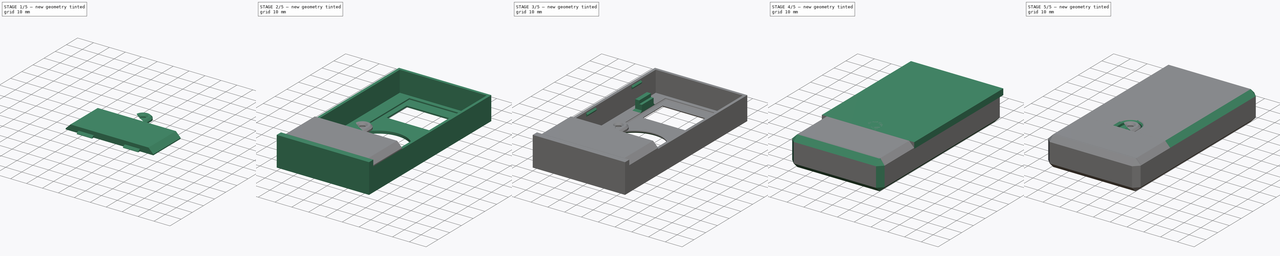
[diagram: build sequence overview — one tinted view per stage of 5, left to right]
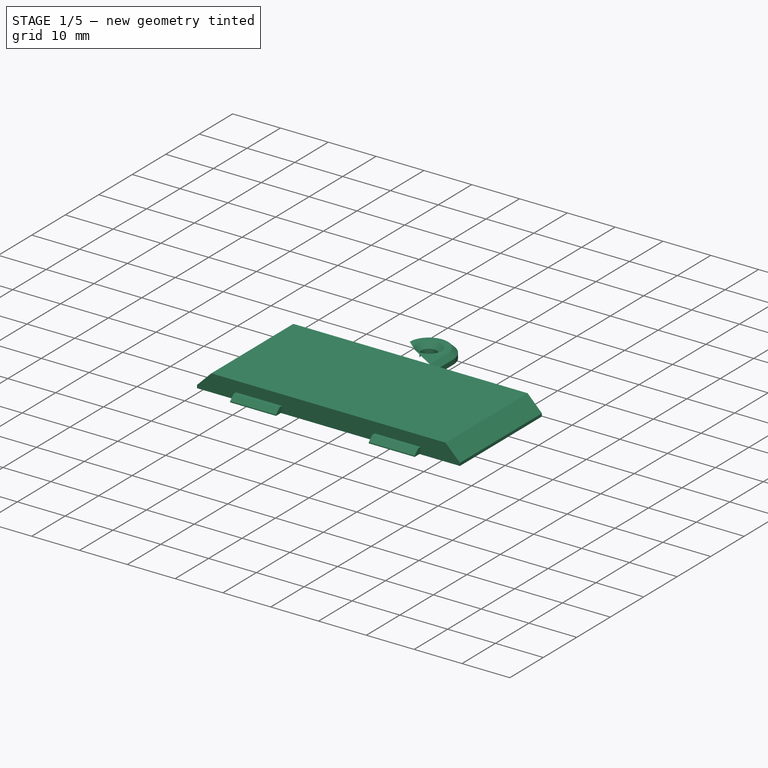
[diagram: stage 1 of 5 — iso view after this stage's code; geometry added in this stage tinted green]
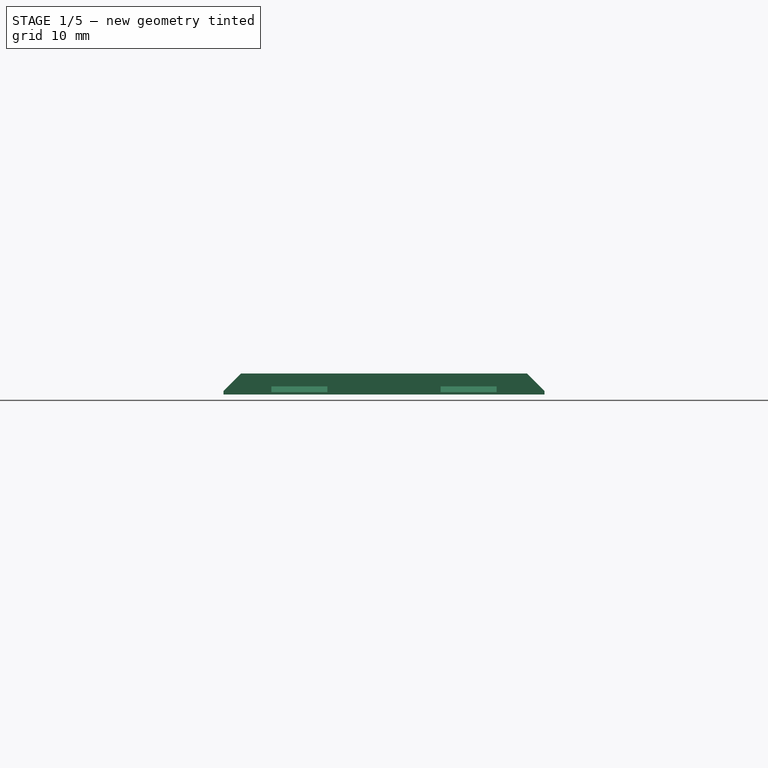
[diagram: stage 1 of 5 — front view after this stage's code; geometry added in this stage tinted green]
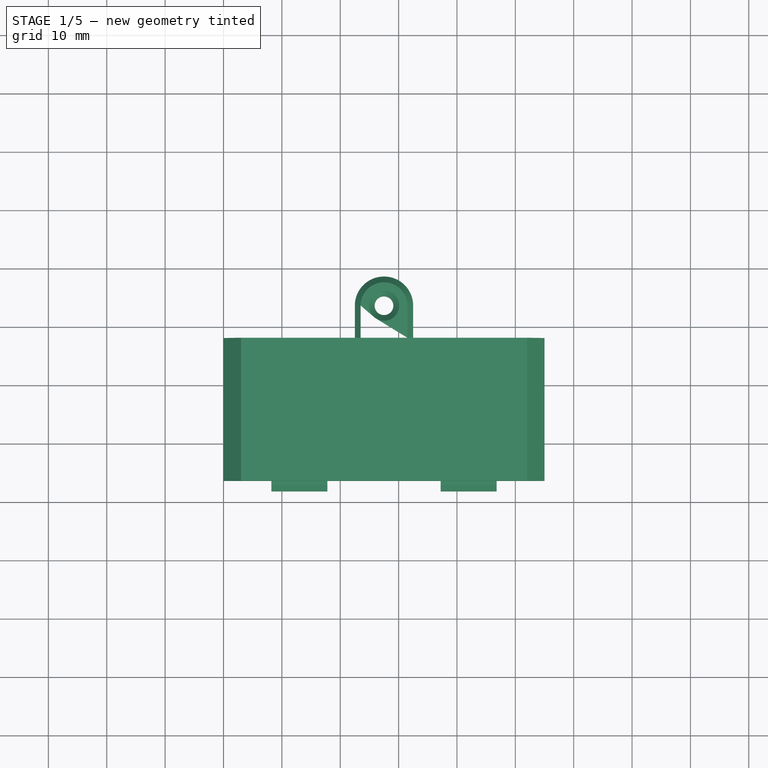
[diagram: stage 1 of 5 — top view after this stage's code; geometry added in this stage tinted green]
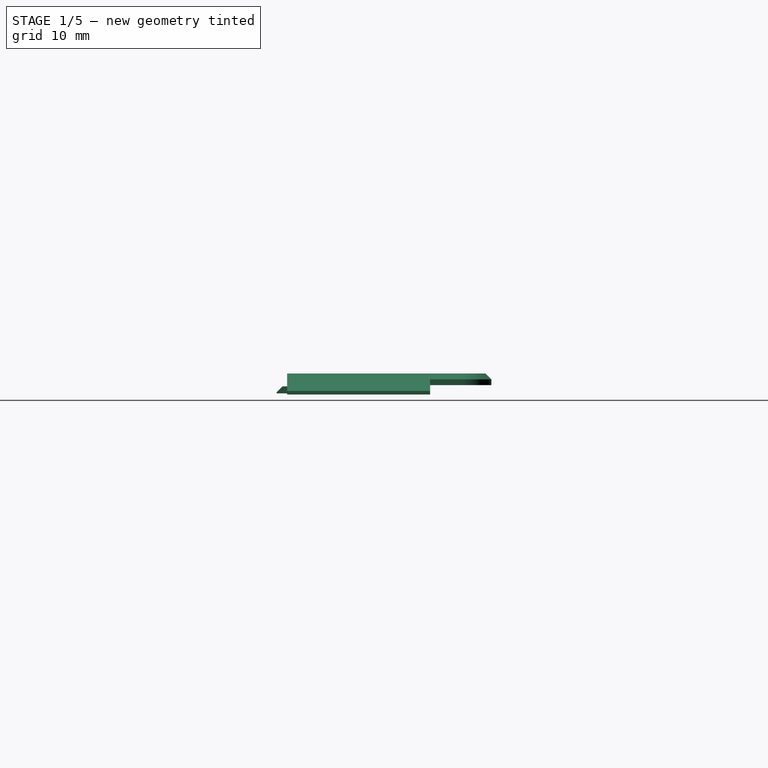
[diagram: stage 1 of 5 — right view after this stage's code; geometry added in this stage tinted green]
FCSTD DOCUMENT  (FreeCAD 0.16R)
Label: test_2
License: All rights reserved
LicenseURL: http://en.wikipedia.org/wiki/All_rights_reserved
objects: Sketcher::SketchObject×30, PartDesign::Chamfer×23, PartDesign::Pad×19, PartDesign::Pocket×11, App::DocumentObjectGroup×3, PartDesign::Fillet×1
note: 114 computed .brp shape members not serialized (recipe doc carries the construction recipe); baked Part::Feature solids carry a one-line shape summary decoded from their .brp

FEATURE [App::DocumentObjectGroup] Group001  label="Back"
  Group = -> [Chamfer013,Chamfer014,Chamfer015,Chamfer016,Chamfer017,Chamfer018,Pocket007,Pocket006,Chamfer012,Pocket004,Pad012,Pocket005,Pad013,Pocket008,Chamfer010,Pad014,Chamfer011]
FEATURE [Sketcher::SketchObject] Sketch024
  Placement = pos=(55,3.65,17.6) rot=(0,1,0;3.14159rad)
  sketch-geometry (4):
    g0: LineSegment StartX=0 StartY=0 StartZ=0 EndX=55 EndY=0 EndZ=0
    g1: LineSegment StartX=55 StartY=0 StartZ=0 EndX=55 EndY=24.5 EndZ=0
    g2: LineSegment StartX=55 StartY=24.5 StartZ=0 EndX=0 EndY=24.5 EndZ=0
    g3: LineSegment StartX=0 StartY=24.5 StartZ=0 EndX=0 EndY=0 EndZ=0
  constraints (11):
    c: Coincident(g0,g1)
    c: Coincident(g1,g2)
    c: Coincident(g2,g3)
    c: Coincident(g3,g0)
    c: Horizontal(g0)
    c: Horizontal(g2)
    c: Vertical(g1)
    c: Vertical(g3)
    c: Coincident(g0,g-1)
    c: Distance(g3) = 24.5
    c: Distance(g0) = 55
FEATURE [PartDesign::Pad] Pad015
  Length = 3.6
  Length2 = 100
  Placement = pos=(55,3.65,17.6) rot=(0,1,0;3.14159rad)
  Sketch = -> Sketch024
  Type = 0
FEATURE [Sketcher::SketchObject] Sketch025
  ExternalGeometry = -> [Pad015]
  Placement = pos=(55,3.65,14) rot=(0,1,0;3.14159rad)
  Support = -> Pad015 [Face6]
  sketch-geometry (4):
    g0: LineSegment StartX=1.6 StartY=22.9 StartZ=0 EndX=53.4 EndY=22.9 EndZ=0
    g1: LineSegment StartX=53.4 StartY=22.9 StartZ=0 EndX=53.4 EndY=1.6 EndZ=0
    g2: LineSegment StartX=53.4 StartY=1.6 StartZ=0 EndX=1.6 EndY=1.6 EndZ=0
    g3: LineSegment StartX=1.6 StartY=1.6 StartZ=0 EndX=1.6 EndY=22.9 EndZ=0
  constraints (12):
    c: Coincident(g0,g1)
    c: Coincident(g1,g2)
    c: Coincident(g2,g3)
    c: Coincident(g3,g0)
    c: Horizontal(g0)
    c: Horizontal(g2)
    c: Vertical(g1)
    c: Vertical(g3)
    c: DistanceX(g-1,g2) = 1.6
    c: DistanceX(g1,g-6) = 1.6
    c: DistanceY(g0,g-5) = 1.6
    c: DistanceY(g-1,g2) = 1.6
FEATURE [PartDesign::Pocket] Pocket009
  Length = 2
  Placement = pos=(55,3.65,17.6) rot=(0,1,0;3.14159rad)
  Sketch = -> Sketch025
  Type = 0
FEATURE [Sketcher::SketchObject] Sketch026
  ExternalGeometry = -> [Pocket009]
  Placement = pos=(55,3.65,16) rot=(0,1,0;3.14159rad)
  Support = -> Pocket009 [Face11]
  sketch-geometry (8):
    g0: LineSegment StartX=16.6 StartY=22.9 StartZ=0 EndX=18.2 EndY=22.9 EndZ=0
    g1: LineSegment StartX=18.2 StartY=22.9 StartZ=0 EndX=18.2 EndY=1.6 EndZ=0
    g2: LineSegment StartX=18.2 StartY=1.6 StartZ=0 EndX=16.6 EndY=1.6 EndZ=0
    g3: LineSegment StartX=16.6 StartY=1.6 StartZ=0 EndX=16.6 EndY=22.9 EndZ=0
    g4: LineSegment StartX=36.8 StartY=22.9 StartZ=0 EndX=38.4 EndY=22.9 EndZ=0
    g5: LineSegment StartX=38.4 StartY=22.9 StartZ=0 EndX=38.4 EndY=1.6 EndZ=0
    g6: LineSegment StartX=38.4 StartY=1.6 StartZ=0 EndX=36.8 EndY=1.6 EndZ=0
    g7: LineSegment StartX=36.8 StartY=1.6 StartZ=0 EndX=36.8 EndY=22.9 EndZ=0
  constraints (24):
    c: Coincident(g0,g1)
    c: Coincident(g1,g2)
    c: Coincident(g2,g3)
    c: Coincident(g3,g0)
    c: Horizontal(g0)
    c: Horizontal(g2)
    c: Vertical(g1)
    c: Vertical(g3)
    c: PointOnObject(g0,g-3)
    c: PointOnObject(g1,g-4)
    c: Coincident(g4,g5)
    c: Coincident(g5,g6)
    c: Coincident(g6,g7)
    c: Coincident(g7,g4)
    c: Horizontal(g4)
    c: Horizontal(g6)
    c: Vertical(g5)
    c: Vertical(g7)
    c: PointOnObject(g5,g-4)
    c: DistanceX(g2,g1) = 1.6
    c: DistanceX(g6,g5) = 1.6
    c: PointOnObject(g4,g-3)
    c: DistanceX(g-4,g2) = 15
    c: DistanceX(g5,g-4) = 15
FEATURE [PartDesign::Pad] Pad016
  Length = 2
  Length2 = 100
  Placement = pos=(55,3.65,17.6) rot=(0,1,0;3.14159rad)
  Sketch = -> Sketch026
  Type = 0
FEATURE [Sketcher::SketchObject] Sketch027
  ExternalGeometry = -> [Pad016]
  Placement = pos=(55,3.65,17.6) rot=(0,0.707107,-0.707107;3.14159rad)
  Support = -> Pad016 [Face1]
  sketch-geometry (8):
    g0: LineSegment StartX=8.2 StartY=3.4 StartZ=0 EndX=17.8 EndY=3.4 EndZ=0
    g1: LineSegment StartX=17.8 StartY=3.4 StartZ=0 EndX=17.8 EndY=2.2 EndZ=0
    g2: LineSegment StartX=17.8 StartY=2.2 StartZ=0 EndX=8.2 EndY=2.2 EndZ=0
    g3: LineSegment StartX=8.2 StartY=2.2 StartZ=0 EndX=8.2 EndY=3.4 EndZ=0
    g4: LineSegment StartX=37.2 StartY=3.4 StartZ=0 EndX=46.8 EndY=3.4 EndZ=0
    g5: LineSegment StartX=46.8 StartY=3.4 StartZ=0 EndX=46.8 EndY=2.2 EndZ=0
    g6: LineSegment StartX=46.8 StartY=2.2 StartZ=0 EndX=37.2 EndY=2.2 EndZ=0
    g7: LineSegment StartX=37.2 StartY=2.2 StartZ=0 EndX=37.2 EndY=3.4 EndZ=0
  constraints (24):
    c: Coincident(g0,g1)
    c: Coincident(g1,g2)
    c: Coincident(g2,g3)
    c: Coincident(g3,g0)
    c: Horizontal(g0)
    c: Horizontal(g2)
    c: Vertical(g1)
    c: Vertical(g3)
    c: Coincident(g4,g5)
    c: Coincident(g5,g6)
    c: Coincident(g6,g7)
    c: Coincident(g7,g4)
    c: Horizontal(g4)
    c: Horizontal(g6)
    c: Vertical(g5)
    c: Vertical(g7)
    c: Equal(g0,g4)
    c: Equal(g1,g7)
    c: Distance(g2) = 9.6
    c: DistanceX(g-1,g2) = 8.2
    c: DistanceY(g-1,g2) = 2.2
    c: DistanceX(g5,g-4) = 8.2
    c: DistanceY(g-4,g5) = 2.2
    c: Distance(g3) = 1.2
FEATURE [PartDesign::Pad] Pad017
  Length = 1.8
  Length2 = 100
  Placement = pos=(55,3.65,17.6) rot=(0,1,0;3.14159rad)
  Sketch = -> Sketch027
  Type = 0
FEATURE [Sketcher::SketchObject] Sketch028
  ExternalGeometry = -> [Pad017]
  Placement = pos=(55,28.15,17.6) rot=(-1,0,0;1.5708rad)
  Support = -> Pad017 [Face2]
  sketch-geometry (4):
    g0: LineSegment StartX=-32.5 StartY=0 StartZ=0 EndX=-22.5 EndY=0 EndZ=0
    g1: LineSegment StartX=-22.5 StartY=0 StartZ=0 EndX=-22.5 EndY=2 EndZ=0
    g2: LineSegment StartX=-22.5 StartY=2 StartZ=0 EndX=-32.5 EndY=2 EndZ=0
    g3: LineSegment StartX=-32.5 StartY=2 StartZ=0 EndX=-32.5 EndY=0 EndZ=0
  constraints (12):
    c: Coincident(g0,g1)
    c: Coincident(g1,g2)
    c: Coincident(g2,g3)
    c: Coincident(g3,g0)
    c: Horizontal(g0)
    c: Horizontal(g2)
    c: Vertical(g1)
    c: Vertical(g3)
    c: PointOnObject(g0,g-1)
    c: DistanceX(g-3,g0) = 22.5
    c: DistanceX(g0,g-1) = 22.5
    c: Distance(g3) = 2
FEATURE [PartDesign::Pad] Pad018
  Length = 10.5
  Length2 = 100
  Placement = pos=(55,3.65,17.6) rot=(0,1,0;3.14159rad)
  Sketch = -> Sketch028
  Type = 0
FEATURE [Sketcher::SketchObject] Sketch029
  ExternalGeometry = -> [Pad018]
  Placement = pos=(55,3.65,17.6) rot=(0,0,1;3.14159rad)
  Support = -> Pad018 [Face18]
  sketch-geometry (1):
    g0: Circle CenterX=27.5 CenterY=-30 CenterZ=0 NormalX=0 NormalY=0 NormalZ=1 Radius=1.6
  constraints (3):
    c: Radius(g0) = 1.6
    c: DistanceX(g-4,g0) = 5
    c: DistanceY(g0,g-4) = 5.5
FEATURE [PartDesign::Pocket] Pocket010
  Length = 5
  Placement = pos=(55,3.65,17.6) rot=(0,1,0;3.14159rad)
  Sketch = -> Sketch029
  Type = 1
FEATURE [PartDesign::Chamfer] Chamfer019
  Base = -> Pocket010 [Edge65,Edge87]
  Placement = pos=(55,3.65,17.6) rot=(0,1,0;3.14159rad)
  Size = 1.99
FEATURE [PartDesign::Chamfer] Chamfer020
  Base = -> Chamfer019 [Edge41,Edge43]
  Placement = pos=(55,3.65,17.6) rot=(0,1,0;3.14159rad)
  Size = 3
FEATURE [PartDesign::Fillet] Fillet
  Base = -> Chamfer020 [Edge97,Edge93]
  Placement = pos=(55,3.65,17.6) rot=(0,1,0;3.14159rad)
  Radius = 4.99
FEATURE [PartDesign::Chamfer] Chamfer021
  Base = -> Fillet [Edge1,Edge2,Edge3,Edge4,Edge5,Edge6,Edge7]
  Placement = pos=(55,3.65,17.6) rot=(0,1,0;3.14159rad)
  Size = 1
FEATURE [App::DocumentObjectGroup] Group  label="Front"
  Group = -> [Chamfer008,Chamfer009,Pocket002,Pocket003,Chamfer004,Chamfer003,Chamfer002,Chamfer001,Pocket001,Pad005,Chamfer005,Pad001,Pad004,Pad002,Pad006,Pad003,Chamfer006,Pad,Chamfer,Pad008,Pad007,Pad009,Pad010,Chamfer007,Pad011,Pocket]
FEATURE [PartDesign::Chamfer] Chamfer022
  Base = -> Chamfer021 [Edge119,Edge109]
  Placement = pos=(55,3.65,17.6) rot=(0,1,0;3.14159rad)
  Size = 1
FEATURE [App::DocumentObjectGroup] Group002  label="Lid"
  Group = -> [Pad016,Pad015,Pocket009,Pocket010,Pad018,Pad017,Fillet,Chamfer020,Chamfer021,Chamfer019,Chamfer022]
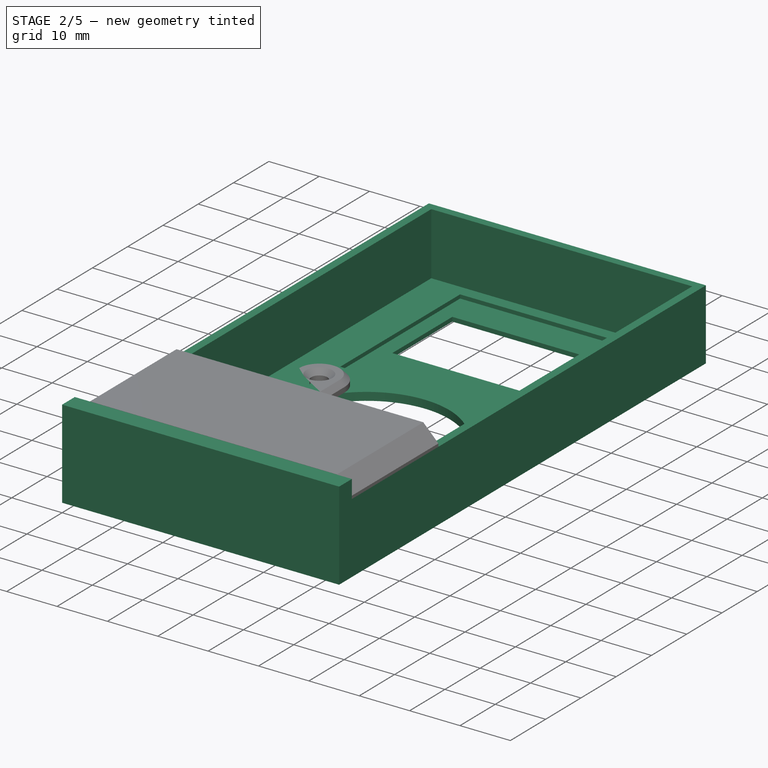
[diagram: stage 2 of 5 — iso view after this stage's code; geometry added in this stage tinted green]
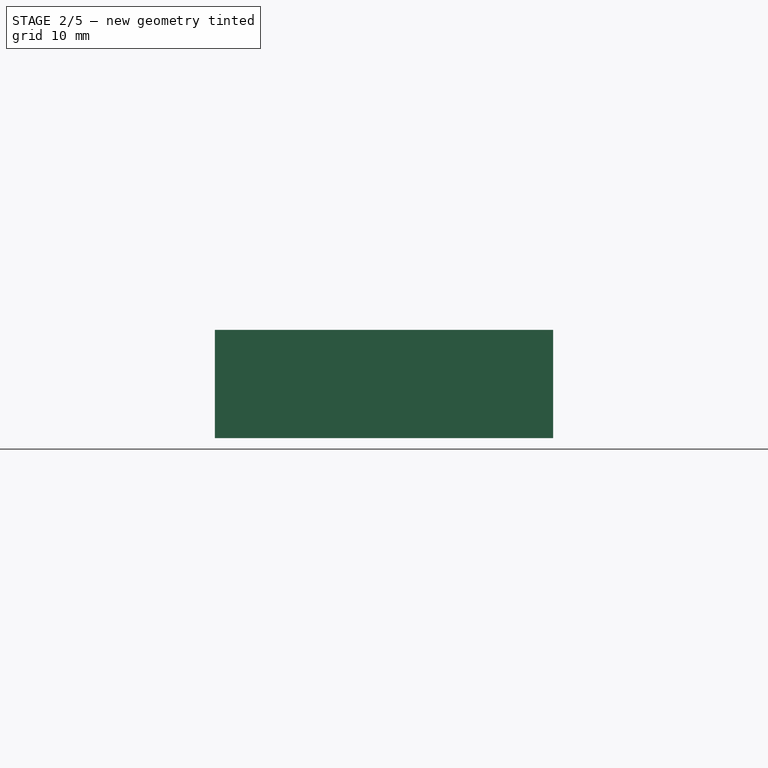
[diagram: stage 2 of 5 — front view after this stage's code; geometry added in this stage tinted green]
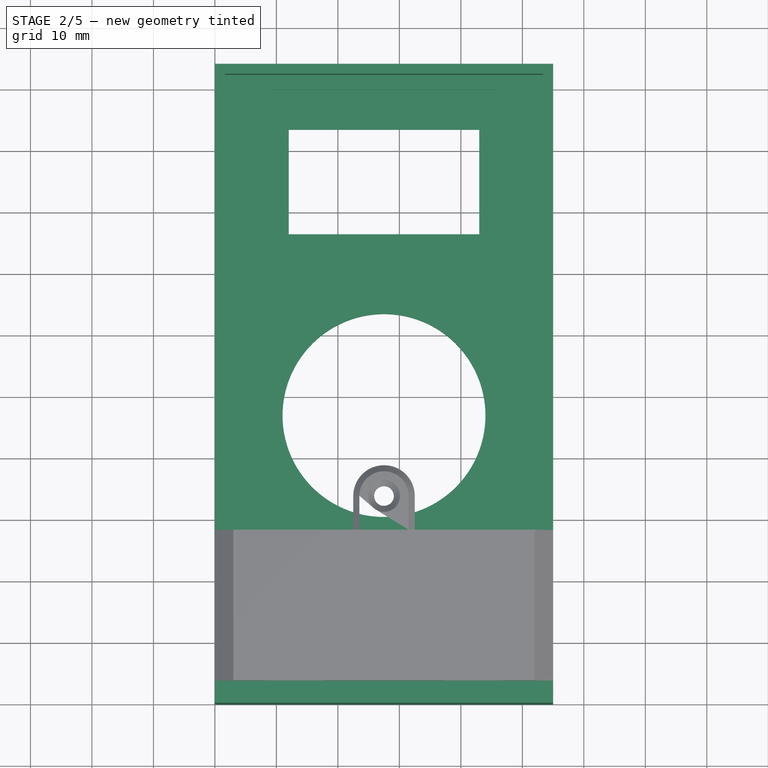
[diagram: stage 2 of 5 — top view after this stage's code; geometry added in this stage tinted green]
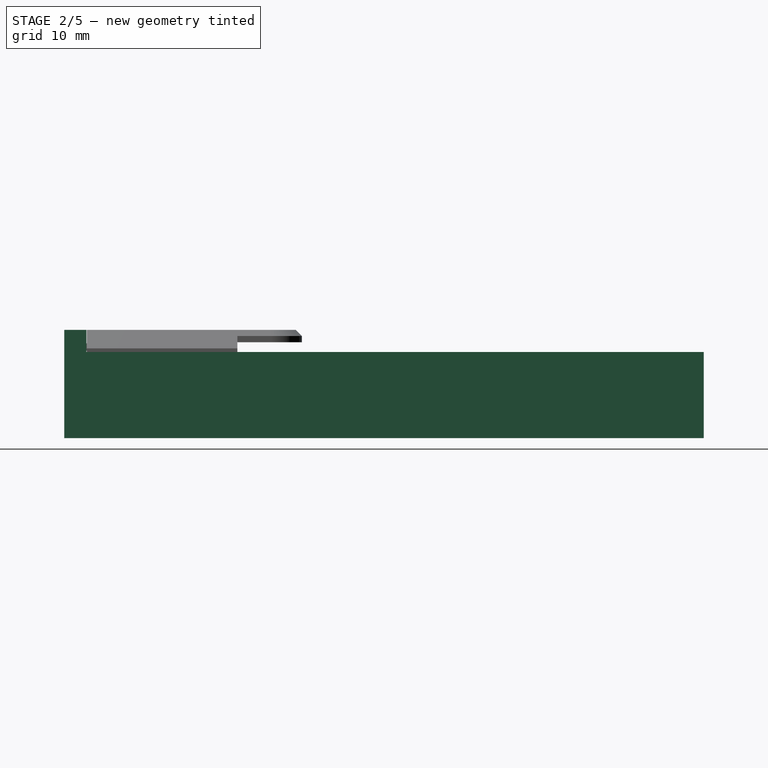
[diagram: stage 2 of 5 — right view after this stage's code; geometry added in this stage tinted green]
FEATURE [Sketcher::SketchObject] Sketch
  sketch-geometry (9):
    g0: LineSegment StartX=0 StartY=0 StartZ=0 EndX=55 EndY=0 EndZ=0
    g1: LineSegment StartX=55 StartY=0 StartZ=0 EndX=55 EndY=104 EndZ=0
    g2: LineSegment StartX=55 StartY=104 StartZ=0 EndX=0 EndY=104 EndZ=0
    g3: LineSegment StartX=0 StartY=104 StartZ=0 EndX=0 EndY=0 EndZ=0
    g4: Circle CenterX=27.5 CenterY=47 CenterZ=0 NormalX=0 NormalY=0 NormalZ=1 Radius=16.5
    g5: LineSegment StartX=12 StartY=93.5 StartZ=0 EndX=43 EndY=93.5 EndZ=0
    g6: LineSegment StartX=43 StartY=93.5 StartZ=0 EndX=43 EndY=76.5 EndZ=0
    g7: LineSegment StartX=43 StartY=76.5 StartZ=0 EndX=12 EndY=76.5 EndZ=0
    g8: LineSegment StartX=12 StartY=76.5 StartZ=0 EndX=12 EndY=93.5 EndZ=0
  constraints (26):
    c: Coincident(g0,g1)
    c: Coincident(g1,g2)
    c: Coincident(g2,g3)
    c: Coincident(g3,g0)
    c: Horizontal(g0)
    c: Horizontal(g2)
    c: Vertical(g1)
    c: Vertical(g3)
    c: Coincident(g0,g-1)
    c: Distance(g3) = 104
    c: Distance(g0) = 55
    c: Coincident(g5,g6)
    c: Coincident(g6,g7)
    c: Coincident(g7,g8)
    c: Coincident(g8,g5)
    c: Horizontal(g5)
    c: Horizontal(g7)
    c: Vertical(g6)
    c: Vertical(g8)
    c: Radius(g4) = 16.5
    c: DistanceX(g4) = 27.5
    c: DistanceY(g4) = 47
    c: DistanceX(g5,g5) = 31
    c: DistanceY(g8,g8) = 17
    c: DistanceX(g5) = 12
    c: DistanceY(g4,g7) = 29.5
FEATURE [PartDesign::Pad] Pad
  Length = 14
  Length2 = 100
  Sketch = -> Sketch
  Type = 0
FEATURE [Sketcher::SketchObject] Sketch001
  ExternalGeometry = -> [Pad]
  Placement = pos=(0,0,14) rot=(0,0,1;0rad)
  Support = -> Pad [Face11]
  sketch-geometry (8):
    g0: LineSegment StartX=1.6 StartY=102.4 StartZ=0 EndX=53.4 EndY=102.4 EndZ=0
    g1: LineSegment StartX=53.4 StartY=28.2 StartZ=0 EndX=1.6 EndY=28.2 EndZ=0
    g2: LineSegment StartX=1.6 StartY=28.2 StartZ=0 EndX=1.6 EndY=102.4 EndZ=0
    g3: LineSegment StartX=1.6 StartY=26.6 StartZ=0 EndX=53.4 EndY=26.6 EndZ=0
    g4: LineSegment StartX=53.4 StartY=3.6 StartZ=0 EndX=1.6 EndY=3.6 EndZ=0
    g5: LineSegment StartX=1.6 StartY=3.6 StartZ=0 EndX=1.6 EndY=26.6 EndZ=0
    g6: LineSegment StartX=53.4 StartY=102.4 StartZ=0 EndX=53.4 EndY=28.2 EndZ=0
    g7: LineSegment StartX=53.4 StartY=26.6 StartZ=0 EndX=53.4 EndY=3.6 EndZ=0
  constraints (24):
    c: Coincident(g1,g2)
    c: Coincident(g2,g0)
    c: Horizontal(g0)
    c: Horizontal(g1)
    c: Vertical(g2)
    c: Coincident(g4,g5)
    c: Coincident(g5,g3)
    c: Horizontal(g3)
    c: Horizontal(g4)
    c: Vertical(g5)
    c: DistanceX(g4) = 1.6
    c: DistanceY(g4) = 3.6
    c: DistanceX(g4,g-5) = 1.6
    c: DistanceY(g3,g1) = 1.6
    c: DistanceX(g0) = 1.6
    c: DistanceY(g0,g-6) = 1.6
    c: DistanceX(g0,g-6) = 1.6
    c: DistanceY(g5,g5) = 23
    c: Coincident(g6,g0)
    c: Coincident(g6,g1)
    c: Vertical(g6)
    c: Coincident(g7,g3)
    c: Coincident(g7,g4)
    c: Vertical(g7)
FEATURE [PartDesign::Pocket] Pocket
  Length = 12.4
  Sketch = -> Sketch001
  Type = 0
FEATURE [Sketcher::SketchObject] Sketch003
  Placement = pos=(0,0,1.6) rot=(0,0,1;0rad)
  Support = -> Pocket [Face20]
  sketch-geometry (4):
    g0: LineSegment StartX=9 StartY=66 StartZ=0 EndX=46 EndY=66 EndZ=0
    g1: LineSegment StartX=46 StartY=66 StartZ=0 EndX=46 EndY=100 EndZ=0
    g2: LineSegment StartX=46 StartY=100 StartZ=0 EndX=9 EndY=100 EndZ=0
    g3: LineSegment StartX=9 StartY=100 StartZ=0 EndX=9 EndY=66 EndZ=0
  constraints (12):
    c: Coincident(g0,g1)
    c: Coincident(g1,g2)
    c: Coincident(g2,g3)
    c: Coincident(g3,g0)
    c: Horizontal(g0)
    c: Horizontal(g2)
    c: Vertical(g1)
    c: Vertical(g3)
    c: DistanceX(g0,g0) = 37
    c: DistanceY(g1,g1) = 34
    c: DistanceX(g0) = 9
    c: DistanceY(g0) = 66
FEATURE [PartDesign::Pocket] Pocket001
  Length = 0.75
  Sketch = -> Sketch003
  Type = 0
FEATURE [Sketcher::SketchObject] Sketch004
  ExternalGeometry = -> [Pocket001]
  Placement = pos=(1.6,0,0) rot=(0.57735,0.57735,0.57735;2.0944rad)
  Support = -> Pocket001 [Face19]
  sketch-geometry (10):
    g0: Circle CenterX=10.5 CenterY=31.65 CenterZ=0 NormalX=0 NormalY=0 NormalZ=1 Radius=2
    g1: Circle CenterX=45 CenterY=31.65 CenterZ=0 NormalX=0 NormalY=0 NormalZ=1 Radius=2
    g2: LineSegment StartX=9 StartY=80 StartZ=0 EndX=5 EndY=80 EndZ=0
    g3: LineSegment StartX=5 StartY=80 StartZ=0 EndX=5 EndY=90 EndZ=0
    g4: LineSegment StartX=5 StartY=90 StartZ=0 EndX=9 EndY=90 EndZ=0
    g5: LineSegment StartX=9 StartY=90 StartZ=0 EndX=9 EndY=80 EndZ=0
    g6: LineSegment StartX=46 StartY=90 StartZ=0 EndX=50 EndY=90 EndZ=0
    g7: LineSegment StartX=50 StartY=90 StartZ=0 EndX=50 EndY=80 EndZ=0
    g8: LineSegment StartX=50 StartY=80 StartZ=0 EndX=46 EndY=80 EndZ=0
    g9: LineSegment StartX=46 StartY=80 StartZ=0 EndX=46 EndY=90 EndZ=0
  constraints (22):
    c: Coincident(g2,g3)
    c: Coincident(g3,g4)
    c: Coincident(g4,g5)
    c: Coincident(g5,g2)
    c: Horizontal(g2)
    c: Horizontal(g4)
    c: Vertical(g3)
    c: Vertical(g5)
    c: Coincident(g6,g7)
    c: Coincident(g7,g8)
    c: Coincident(g8,g9)
    c: Coincident(g9,g6)
    c: Horizontal(g6)
    c: Horizontal(g8)
    c: Vertical(g7)
    c: Vertical(g9)
    c: Radius(g0) = 2
    c: Equal(g0,g1)
    c: Distance(g2) = 4
    c: Distance(g8) = 4
    c: Distance(g3) = 10
    c: Distance(g7) = 10
FEATURE [PartDesign::Pad] Pad001
  Length = 4
  Length2 = 100
  Sketch = -> Sketch004
  Type = 0
FEATURE [Sketcher::SketchObject] Sketch005
  Placement = pos=(0,0,5.6) rot=(0,0,1;0rad)
  Support = -> Pad001 [Face35]
  sketch-geometry (10):
    g0: LineSegment StartX=5 StartY=90 StartZ=0 EndX=7.45 EndY=90 EndZ=0
    g1: LineSegment StartX=7.45 StartY=90 StartZ=0 EndX=7.45 EndY=80 EndZ=0
    g2: LineSegment StartX=7.45 StartY=80 StartZ=0 EndX=5 EndY=80 EndZ=0
    g3: LineSegment StartX=5 StartY=80 StartZ=0 EndX=5 EndY=90 EndZ=0
    g4: LineSegment StartX=50 StartY=90 StartZ=0 EndX=47.85 EndY=90 EndZ=0
    g5: LineSegment StartX=47.85 StartY=90 StartZ=0 EndX=47.85 EndY=80 EndZ=0
    g6: LineSegment StartX=47.85 StartY=80 StartZ=0 EndX=50 EndY=80 EndZ=0
    g7: LineSegment StartX=50 StartY=80 StartZ=0 EndX=50 EndY=90 EndZ=0
    g8: Circle CenterX=10.5 CenterY=31.65 CenterZ=0 NormalX=0 NormalY=0 NormalZ=1 Radius=0.8
    g9: Circle CenterX=45 CenterY=31.65 CenterZ=0 NormalX=0 NormalY=0 NormalZ=1 Radius=0.8
FEATURE [PartDesign::Pad] Pad002
  Length = 2
  Length2 = 100
  Sketch = -> Sketch005
  Type = 0
FEATURE [Sketcher::SketchObject] Sketch006
  ExternalGeometry = -> [Pad002]
  Placement = pos=(0,0,1.6) rot=(0,0,1;0rad)
  Support = -> Pad002 [Face22]
  sketch-geometry (8):
    g0: LineSegment StartX=16.6 StartY=26.6 StartZ=0 EndX=15 EndY=26.6 EndZ=0
    g1: LineSegment StartX=15 StartY=26.6 StartZ=0 EndX=15 EndY=3.6 EndZ=0
    g2: LineSegment StartX=15 StartY=3.6 StartZ=0 EndX=16.6 EndY=3.6 EndZ=0
    g3: LineSegment StartX=16.6 StartY=3.6 StartZ=0 EndX=16.6 EndY=26.6 EndZ=0
    g4: LineSegment StartX=36.8 StartY=26.6 StartZ=0 EndX=38.4 EndY=26.6 EndZ=0
    g5: LineSegment StartX=38.4 StartY=26.6 StartZ=0 EndX=38.4 EndY=3.6 EndZ=0
    g6: LineSegment StartX=38.4 StartY=3.6 StartZ=0 EndX=36.8 EndY=3.6 EndZ=0
    g7: LineSegment StartX=36.8 StartY=3.6 StartZ=0 EndX=36.8 EndY=26.6 EndZ=0
  constraints (24):
    c: Coincident(g0,g1)
    c: Coincident(g1,g2)
    c: Coincident(g2,g3)
    c: Coincident(g3,g0)
    c: Horizontal(g0)
    c: Horizontal(g2)
    c: Vertical(g1)
    c: Vertical(g3)
    c: PointOnObject(g0,g-3)
    c: PointOnObject(g1,g-4)
    c: Coincident(g4,g5)
    c: Coincident(g5,g6)
    c: Coincident(g6,g7)
    c: Coincident(g7,g4)
    c: Horizontal(g4)
    c: Horizontal(g6)
    c: Vertical(g5)
    c: Vertical(g7)
    c: PointOnObject(g4,g-3)
    c: PointOnObject(g5,g-4)
    c: Distance(g2,g1) = 1.6
    c: Distance(g6,g5) = 1.6
    c: DistanceX(g-4,g2) = 15
    c: DistanceX(g5,g-4) = 15
FEATURE [PartDesign::Pad] Pad003
  Length = 2
  Length2 = 100
  Sketch = -> Sketch006
  Type = 0
FEATURE [Sketcher::SketchObject] Sketch007
  ExternalGeometry = -> [Pad003]
  Placement = pos=(0,0,1.6) rot=(0,0,1;0rad)
  Support = -> Pad003 [Face26]
  sketch-geometry (4):
    g0: LineSegment StartX=16.6 StartY=15.9 StartZ=0 EndX=36.8 EndY=15.9 EndZ=0
    g1: LineSegment StartX=36.8 StartY=15.9 StartZ=0 EndX=36.8 EndY=14.3 EndZ=0
    g2: LineSegment StartX=36.8 StartY=14.3 StartZ=0 EndX=16.6 EndY=14.3 EndZ=0
    g3: LineSegment StartX=16.6 StartY=14.3 StartZ=0 EndX=16.6 EndY=15.9 EndZ=0
  constraints (12):
    c: Coincident(g0,g1)
    c: Coincident(g1,g2)
    c: Coincident(g2,g3)
    c: Coincident(g3,g0)
    c: Horizontal(g0)
    c: Horizontal(g2)
    c: Vertical(g1)
    c: Vertical(g3)
    c: PointOnObject(g0,g-3)
    c: PointOnObject(g1,g-4)
    c: Distance(g0,g2) = 1.6
    c: DistanceY(g0,g-3) = 10.7
FEATURE [PartDesign::Pad] Pad004
  Length = 10
  Length2 = 100
  Sketch = -> Sketch007
  Type = 0
FEATURE [Sketcher::SketchObject] Sketch008
  ExternalGeometry = -> [Pad004]
  Placement = pos=(0,0,1.6) rot=(0,0,1;0rad)
  Support = -> Pad004 [Face30]
  sketch-geometry (16):
    g0: LineSegment StartX=2.6 StartY=26.6 StartZ=0 EndX=3.4 EndY=26.6 EndZ=0
    g1: LineSegment StartX=3.4 StartY=26.6 StartZ=0 EndX=3.4 EndY=25.1 EndZ=0
    g2: LineSegment StartX=3.4 StartY=25.1 StartZ=0 EndX=2.6 EndY=25.1 EndZ=0
    g3: LineSegment StartX=2.6 StartY=25.1 StartZ=0 EndX=2.6 EndY=26.6 EndZ=0
    g4: LineSegment StartX=2.6 StartY=3.6 StartZ=0 EndX=3.4 EndY=3.6 EndZ=0
    g5: LineSegment StartX=3.4 StartY=3.6 StartZ=0 EndX=3.4 EndY=5.1 EndZ=0
    g6: LineSegment StartX=3.4 StartY=5.1 StartZ=0 EndX=2.6 EndY=5.1 EndZ=0
    g7: LineSegment StartX=2.6 StartY=5.1 StartZ=0 EndX=2.6 EndY=3.6 EndZ=0
    g8: LineSegment StartX=1.6 StartY=16.6 StartZ=0 EndX=1.6 EndY=13.6 EndZ=0
    g9: LineSegment StartX=1.6 StartY=13.6 StartZ=0 EndX=2.6 EndY=13.6 EndZ=0
    g10: LineSegment StartX=2.6 StartY=13.6 StartZ=0 EndX=2.6 EndY=12.1 EndZ=0
    g11: LineSegment StartX=2.6 StartY=12.1 StartZ=0 EndX=3.4 EndY=12.1 EndZ=0
    g12: LineSegment StartX=3.4 StartY=12.1 StartZ=0 EndX=3.4 EndY=18.1 EndZ=0
    g13: LineSegment StartX=3.4 StartY=18.1 StartZ=0 EndX=2.6 EndY=18.1 EndZ=0
    g14: LineSegment StartX=2.6 StartY=18.1 StartZ=0 EndX=2.6 EndY=16.6 EndZ=0
    g15: LineSegment StartX=2.6 StartY=16.6 StartZ=0 EndX=1.6 EndY=16.6 EndZ=0
  constraints (48):
    c: Coincident(g0,g1)
    c: Coincident(g1,g2)
    c: Coincident(g2,g3)
    c: Coincident(g3,g0)
    c: Horizontal(g0)
    c: Horizontal(g2)
    c: Vertical(g1)
    c: Vertical(g3)
    c: PointOnObject(g0,g-3)
    c: Coincident(g4,g5)
    c: Coincident(g5,g6)
    c: Coincident(g6,g7)
    c: Coincident(g7,g4)
    c: Horizontal(g4)
    c: Horizontal(g6)
    c: Vertical(g5)
    c: Vertical(g7)
    c: PointOnObject(g4,g-5)
    c: Vertical(g8)
    c: Coincident(g8,g9)
    c: Horizontal(g9)
    c: Coincident(g9,g10)
    c: Vertical(g10)
    c: Coincident(g10,g11)
    c: Horizontal(g11)
    c: Coincident(g11,g12)
    c: Vertical(g12)
    c: Coincident(g12,g13)
    c: Horizontal(g13)
    c: Coincident(g13,g14)
    c: Vertical(g14)
    c: Coincident(g14,g15)
    c: Coincident(g15,g8)
    c: Parallel(g15,g9)
    c: Equal(g15,g9)
    c: Equal(g14,g10)
    c: Equal(g10,g7)
    c: Equal(g7,g3)
    c: Equal(g13,g2)
    c: Equal(g2,g6)
    c: PointOnObject(g8,g-4)
    c: Distance(g1) = 1.5
    c: Distance(g2) = 0.8
    c: Distance(g15) = 1
    c: DistanceX(g-4,g0) = 1
    c: DistanceX(g-5,g4) = 1
    c: DistanceY(g-5,g8) = 10
    c: DistanceY(g8,g-4) = 10
FEATURE [PartDesign::Pad] Pad005
  Length = 12
  Length2 = 100
  Sketch = -> Sketch008
  Type = 0
FEATURE [Sketcher::SketchObject] Sketch009
  ExternalGeometry = -> [Pad005]
  Placement = pos=(0,0,1.6) rot=(0,0,1;0rad)
  Support = -> Pad005 [Face22]
  sketch-geometry (16):
    g0: LineSegment StartX=51.6 StartY=26.6 StartZ=0 EndX=52.4 EndY=26.6 EndZ=0
    g1: LineSegment StartX=52.4 StartY=26.6 StartZ=0 EndX=52.4 EndY=25.1 EndZ=0
    g2: LineSegment StartX=52.4 StartY=25.1 StartZ=0 EndX=51.6 EndY=25.1 EndZ=0
    g3: LineSegment StartX=51.6 StartY=25.1 StartZ=0 EndX=51.6 EndY=26.6 EndZ=0
    g4: LineSegment StartX=51.6 StartY=3.6 StartZ=0 EndX=52.4 EndY=3.6 EndZ=0
    g5: LineSegment StartX=52.4 StartY=3.6 StartZ=0 EndX=52.4 EndY=5.1 EndZ=0
    g6: LineSegment StartX=52.4 StartY=5.1 StartZ=0 EndX=51.6 EndY=5.1 EndZ=0
    g7: LineSegment StartX=51.6 StartY=5.1 StartZ=0 EndX=51.6 EndY=3.6 EndZ=0
    g8: LineSegment StartX=53.4 StartY=16.6 StartZ=0 EndX=52.4 EndY=16.6 EndZ=0
    g9: LineSegment StartX=52.4 StartY=16.6 StartZ=0 EndX=52.4 EndY=18.1 EndZ=0
    g10: LineSegment StartX=52.4 StartY=18.1 StartZ=0 EndX=51.6 EndY=18.1 EndZ=0
    g11: LineSegment StartX=51.6 StartY=18.1 StartZ=0 EndX=51.6 EndY=12.1 EndZ=0
    g12: LineSegment StartX=51.6 StartY=12.1 StartZ=0 EndX=52.4 EndY=12.1 EndZ=0
    g13: LineSegment StartX=52.4 StartY=12.1 StartZ=0 EndX=52.4 EndY=13.6 EndZ=0
    g14: LineSegment StartX=52.4 StartY=13.6 StartZ=0 EndX=53.4 EndY=13.6 EndZ=0
    g15: LineSegment StartX=53.4 StartY=13.6 StartZ=0 EndX=53.4 EndY=16.6 EndZ=0
  constraints (48):
    c: Coincident(g0,g1)
    c: Coincident(g1,g2)
    c: Coincident(g2,g3)
    c: Coincident(g3,g0)
    c: Horizontal(g0)
    c: Horizontal(g2)
    c: Vertical(g1)
    c: Vertical(g3)
    c: PointOnObject(g0,g-3)
    c: Coincident(g4,g5)
    c: Coincident(g5,g6)
    c: Coincident(g6,g7)
    c: Coincident(g7,g4)
    c: Horizontal(g4)
    c: Horizontal(g6)
    c: Vertical(g5)
    c: Vertical(g7)
    c: PointOnObject(g4,g-5)
    c: PointOnObject(g8,g-4)
    c: Horizontal(g8)
    c: Coincident(g8,g9)
    c: Vertical(g9)
    c: Coincident(g9,g10)
    c: Horizontal(g10)
    c: Coincident(g10,g11)
    c: Vertical(g11)
    c: Coincident(g11,g12)
    c: Horizontal(g12)
    c: Coincident(g12,g13)
    c: Vertical(g13)
    c: Coincident(g13,g14)
    c: PointOnObject(g14,g-4)
    c: Horizontal(g14)
    c: Coincident(g14,g15)
    c: Coincident(g15,g8)
    c: Equal(g5,g13)
    c: Equal(g13,g9)
    c: Equal(g9,g1)
    c: Equal(g10,g2)
    c: Equal(g2,g6)
    c: Equal(g6,g12)
    c: Distance(g6) = 0.8
    c: Distance(g5) = 1.5
    c: DistanceX(g4,g-5) = 1
    c: DistanceX(g0,g-4) = 1
    c: Distance(g8) = 1
    c: DistanceY(g8,g-4) = 10
    c: DistanceY(g-5,g14) = 10
FEATURE [PartDesign::Pad] Pad006
  Length = 12
  Length2 = 100
  Sketch = -> Sketch009
  Type = 0
FEATURE [Sketcher::SketchObject] Sketch010
  ExternalGeometry = -> [Pad006]
  Placement = pos=(0,26.6,0) rot=(1,0,0;1.5708rad)
  Support = -> Pad006 [Face12]
  sketch-geometry (8):
    g0: LineSegment StartX=3.4 StartY=1.6 StartZ=0 EndX=7.4 EndY=1.6 EndZ=0
    g1: LineSegment StartX=7.4 StartY=1.6 StartZ=0 EndX=7.4 EndY=5.6 EndZ=0
    g2: LineSegment StartX=7.4 StartY=5.6 StartZ=0 EndX=3.4 EndY=5.6 EndZ=0
    g3: LineSegment StartX=3.4 StartY=5.6 StartZ=0 EndX=3.4 EndY=1.6 EndZ=0
    g4: LineSegment StartX=51.6 StartY=1.6 StartZ=0 EndX=47.6 EndY=1.6 EndZ=0
    g5: LineSegment StartX=47.6 StartY=1.6 StartZ=0 EndX=47.6 EndY=5.6 EndZ=0
    g6: LineSegment StartX=47.6 StartY=5.6 StartZ=0 EndX=51.6 EndY=5.6 EndZ=0
    g7: LineSegment StartX=51.6 StartY=5.6 StartZ=0 EndX=51.6 EndY=1.6 EndZ=0
  constraints (24):
    c: Coincident(g0,g1)
    c: Coincident(g1,g2)
    c: Coincident(g2,g3)
    c: Coincident(g3,g0)
    c: Horizontal(g0)
    c: Horizontal(g2)
    c: Vertical(g1)
    c: Vertical(g3)
    c: PointOnObject(g0,g-3)
    c: Coincident(g4,g5)
    c: Coincident(g5,g6)
    c: Coincident(g6,g7)
    c: Coincident(g7,g4)
    c: Horizontal(g4)
    c: Horizontal(g6)
    c: Vertical(g5)
    c: Vertical(g7)
    c: PointOnObject(g4,g-6)
    c: Coincident(g4,g-6)
    c: Equal(g6,g5)
    c: Coincident(g0,g-3)
    c: Equal(g2,g1)
    c: Equal(g1,g5)
    c: Distance(g2) = 4
FEATURE [PartDesign::Pocket] Pocket002
  Length = 5
  Sketch = -> Sketch010
  Type = 2
FEATURE [Sketcher::SketchObject] Sketch011
  ExternalGeometry = -> [Pocket002]
  Placement = pos=(0,0,14) rot=(0,0,1;0rad)
  Support = -> Pocket002 [Face5]
  sketch-geometry (4):
    g0: LineSegment StartX=0 StartY=0 StartZ=0 EndX=55 EndY=0 EndZ=0
    g1: LineSegment StartX=55 StartY=0 StartZ=0 EndX=55 EndY=3.6 EndZ=0
    g2: LineSegment StartX=55 StartY=3.6 StartZ=0 EndX=0 EndY=3.6 EndZ=0
    g3: LineSegment StartX=0 StartY=3.6 StartZ=0 EndX=0 EndY=0 EndZ=0
  constraints (11):
    c: Coincident(g0,g1)
    c: Coincident(g1,g2)
    c: Coincident(g2,g3)
    c: Coincident(g3,g0)
    c: Horizontal(g0)
    c: Horizontal(g2)
    c: Vertical(g1)
    c: Vertical(g3)
    c: Coincident(g0,g-1)
    c: PointOnObject(g1,g-3)
    c: DistanceY(g3,g3) = 3.6
FEATURE [PartDesign::Pad] Pad007
  Length = 3.6
  Length2 = 100
  Sketch = -> Sketch011
  Type = 0
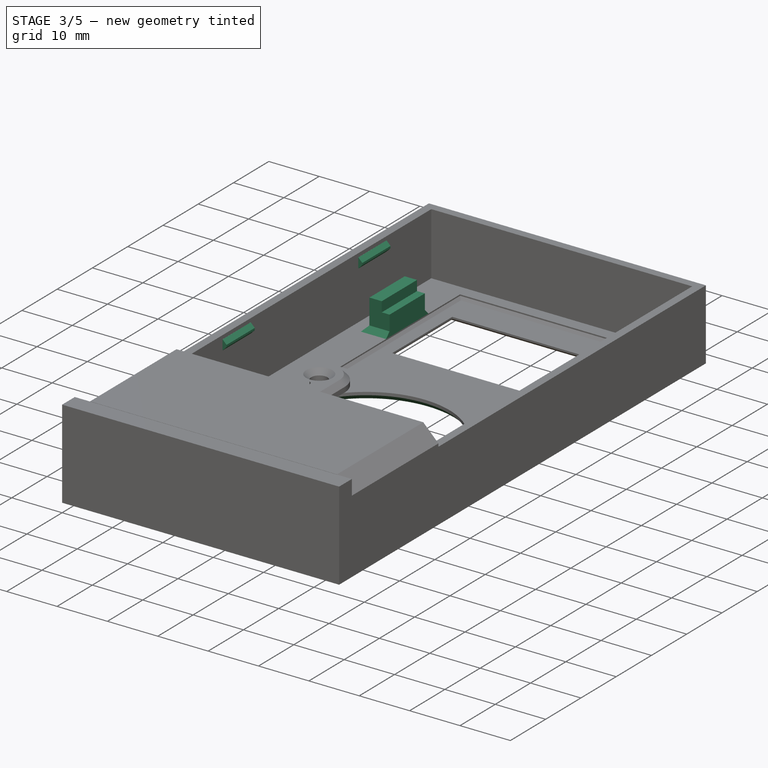
[diagram: stage 3 of 5 — iso view after this stage's code; geometry added in this stage tinted green]
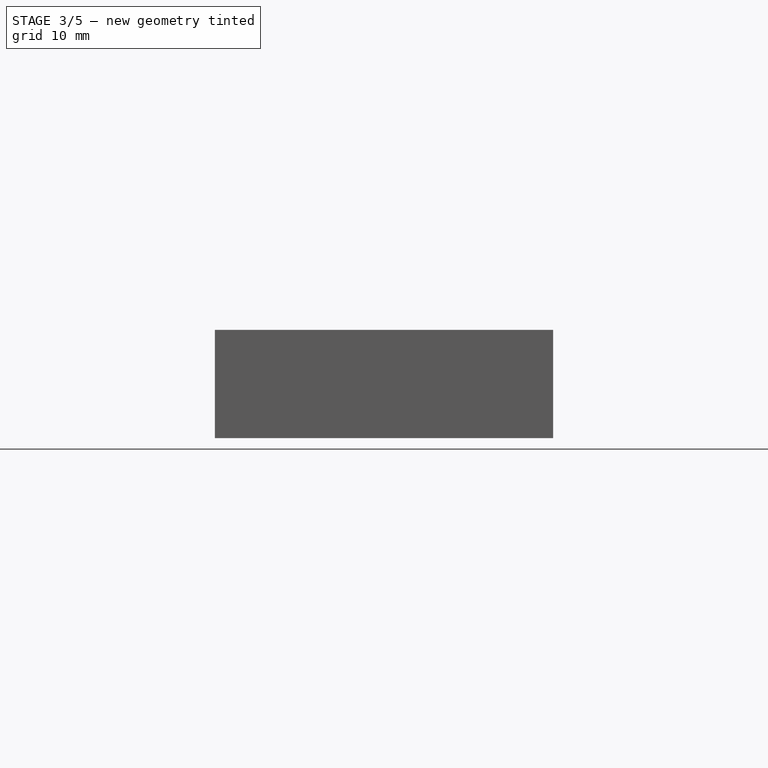
[diagram: stage 3 of 5 — front view after this stage's code; geometry added in this stage tinted green]
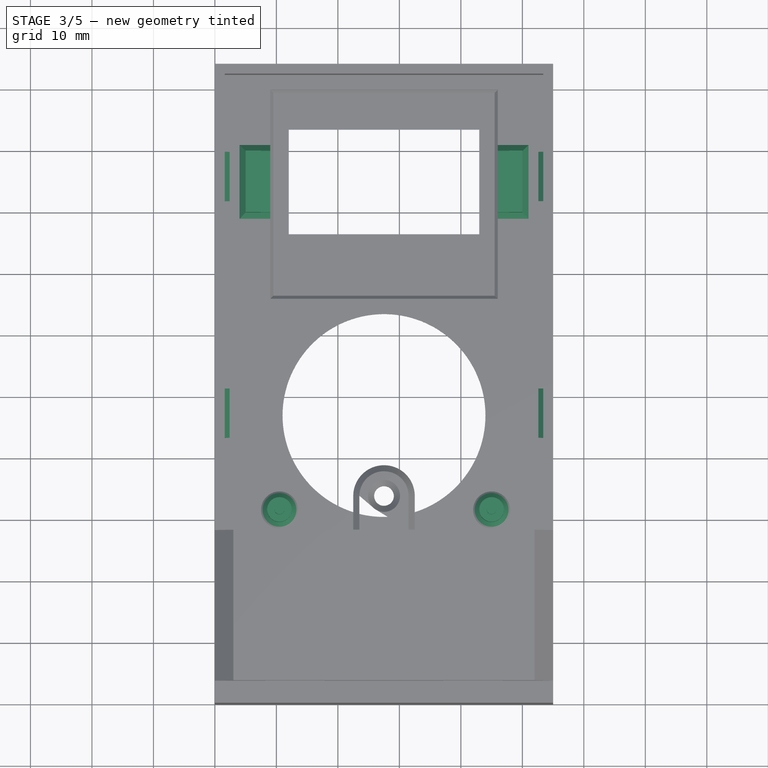
[diagram: stage 3 of 5 — top view after this stage's code; geometry added in this stage tinted green]
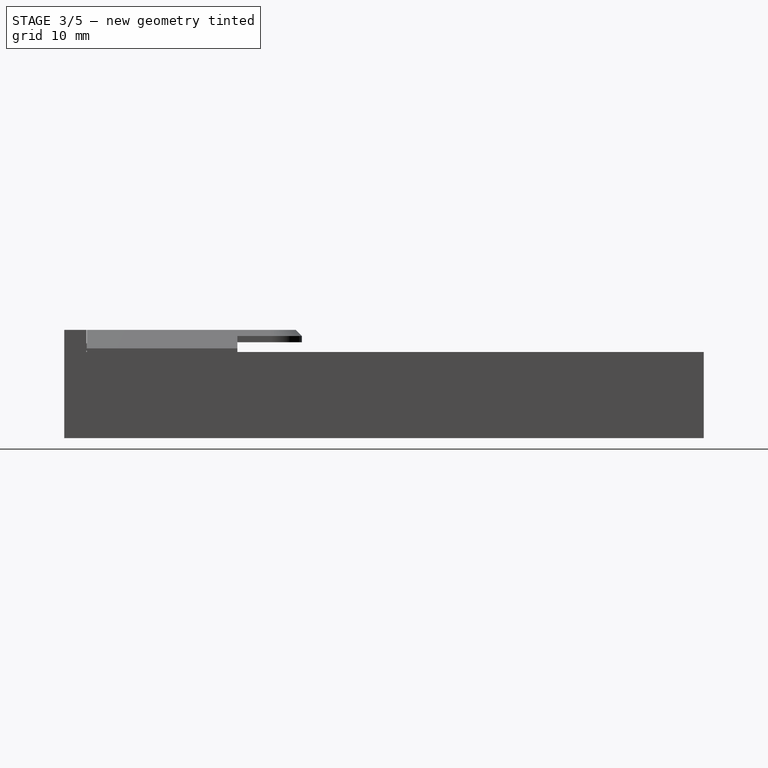
[diagram: stage 3 of 5 — right view after this stage's code; geometry added in this stage tinted green]
FEATURE [Sketcher::SketchObject] Sketch012
  ExternalGeometry = -> [Pad007]
  Placement = pos=(0,0,1.6) rot=(0,0,1;0rad)
  Support = -> Pad007 [Face59]
  sketch-geometry (10):
    g0: Circle CenterX=10.5 CenterY=31.65 CenterZ=0 NormalX=0 NormalY=0 NormalZ=1 Radius=2
    g1: Circle CenterX=45 CenterY=31.65 CenterZ=0 NormalX=0 NormalY=0 NormalZ=1 Radius=2
    g2: LineSegment StartX=9 StartY=90 StartZ=0 EndX=5 EndY=90 EndZ=0
    g3: LineSegment StartX=5 StartY=90 StartZ=0 EndX=5 EndY=80 EndZ=0
    g4: LineSegment StartX=5 StartY=80 StartZ=0 EndX=9 EndY=80 EndZ=0
    g5: LineSegment StartX=9 StartY=80 StartZ=0 EndX=9 EndY=90 EndZ=0
    g6: LineSegment StartX=46 StartY=90 StartZ=0 EndX=50 EndY=90 EndZ=0
    g7: LineSegment StartX=50 StartY=90 StartZ=0 EndX=50 EndY=80 EndZ=0
    g8: LineSegment StartX=50 StartY=80 StartZ=0 EndX=46 EndY=80 EndZ=0
    g9: LineSegment StartX=46 StartY=80 StartZ=0 EndX=46 EndY=90 EndZ=0
  constraints (30):
    c: Coincident(g2,g3)
    c: Coincident(g3,g4)
    c: Coincident(g4,g5)
    c: Coincident(g5,g2)
    c: Horizontal(g2)
    c: Horizontal(g4)
    c: Vertical(g3)
    c: Vertical(g5)
    c: PointOnObject(g2,g-4)
    c: Coincident(g6,g7)
    c: Coincident(g7,g8)
    c: Coincident(g8,g9)
    c: Coincident(g9,g6)
    c: Horizontal(g6)
    c: Horizontal(g8)
    c: Vertical(g7)
    c: Vertical(g9)
    c: PointOnObject(g6,g-5)
    c: Equal(g4,g8)
    c: Equal(g3,g7)
    c: Distance(g3) = 10
    c: DistanceY(g2,g-4) = 10
    c: Distance(g4) = 4
    c: DistanceY(g6,g-5) = 10
    c: Radius(g0) = 2
    c: Equal(g0,g1)
    c: DistanceX(g0,g-3) = 17
    c: DistanceX(g-3,g1) = 17.5
    c: DistanceY(g0,g-3) = 15.35
    c: DistanceY(g1,g-3) = 15.35
FEATURE [PartDesign::Pad] Pad008
  Length = 4
  Length2 = 100
  Sketch = -> Sketch012
  Type = 0
FEATURE [Sketcher::SketchObject] Sketch013
  ExternalGeometry = -> [Pad008]
  Placement = pos=(0,0,5.6) rot=(0,0,1;0rad)
  Support = -> Pad008 [Face96]
  sketch-geometry (10):
    g0: Circle CenterX=10.5 CenterY=31.65 CenterZ=0 NormalX=0 NormalY=0 NormalZ=1 Radius=0.8
    g1: Circle CenterX=45 CenterY=31.65 CenterZ=0 NormalX=0 NormalY=0 NormalZ=1 Radius=0.8
    g2: LineSegment StartX=5 StartY=90 StartZ=0 EndX=7.45 EndY=90 EndZ=0
    g3: LineSegment StartX=7.45 StartY=90 StartZ=0 EndX=7.45 EndY=80 EndZ=0
    g4: LineSegment StartX=7.45 StartY=80 StartZ=0 EndX=5 EndY=80 EndZ=0
    g5: LineSegment StartX=5 StartY=80 StartZ=0 EndX=5 EndY=90 EndZ=0
    g6: LineSegment StartX=50 StartY=90 StartZ=0 EndX=47.85 EndY=90 EndZ=0
    g7: LineSegment StartX=47.85 StartY=90 StartZ=0 EndX=47.85 EndY=80 EndZ=0
    g8: LineSegment StartX=47.85 StartY=80 StartZ=0 EndX=50 EndY=80 EndZ=0
    g9: LineSegment StartX=50 StartY=80 StartZ=0 EndX=50 EndY=90 EndZ=0
  constraints (26):
    c: Coincident(g0,g-3)
    c: Coincident(g1,g-4)
    c: Coincident(g2,g3)
    c: Coincident(g3,g4)
    c: Coincident(g4,g5)
    c: Coincident(g5,g2)
    c: Horizontal(g2)
    c: Horizontal(g4)
    c: Vertical(g3)
    c: Vertical(g5)
    c: Coincident(g2,g-6)
    c: PointOnObject(g3,g-7)
    c: Coincident(g6,g7)
    c: Coincident(g7,g8)
    c: Coincident(g8,g9)
    c: Coincident(g9,g6)
    c: Horizontal(g6)
    c: Horizontal(g8)
    c: Vertical(g7)
    c: Vertical(g9)
    c: Coincident(g6,g-9)
    c: PointOnObject(g7,g-10)
    c: Distance(g3,g4) = 2.45
    c: Distance(g7,g8) = 2.15
    c: Radius(g0) = 0.8
    c: Equal(g0,g1)
FEATURE [PartDesign::Pad] Pad009
  Length = 2
  Length2 = 100
  Sketch = -> Sketch013
  Type = 0
FEATURE [Sketcher::SketchObject] Sketch014
  ExternalGeometry = -> [Pad009]
  Placement = pos=(53.4,0,0) rot=(0.57735,-0.57735,-0.57735;2.0944rad)
  Support = -> Pad009 [Face17]
  sketch-geometry (8):
    g0: LineSegment StartX=-89.7 StartY=13.25 StartZ=0 EndX=-81.7 EndY=13.25 EndZ=0
    g1: LineSegment StartX=-81.7 StartY=13.25 StartZ=0 EndX=-81.7 EndY=11.25 EndZ=0
    g2: LineSegment StartX=-81.7 StartY=11.25 StartZ=0 EndX=-89.7 EndY=11.25 EndZ=0
    g3: LineSegment StartX=-89.7 StartY=11.25 StartZ=0 EndX=-89.7 EndY=13.25 EndZ=0
    g4: LineSegment StartX=-51.2 StartY=13.25 StartZ=0 EndX=-43.2 EndY=13.25 EndZ=0
    g5: LineSegment StartX=-43.2 StartY=13.25 StartZ=0 EndX=-43.2 EndY=11.25 EndZ=0
    g6: LineSegment StartX=-43.2 StartY=11.25 StartZ=0 EndX=-51.2 EndY=11.25 EndZ=0
    g7: LineSegment StartX=-51.2 StartY=11.25 StartZ=0 EndX=-51.2 EndY=13.25 EndZ=0
  constraints (24):
    c: Coincident(g0,g1)
    c: Coincident(g1,g2)
    c: Coincident(g2,g3)
    c: Coincident(g3,g0)
    c: Horizontal(g0)
    c: Horizontal(g2)
    c: Vertical(g1)
    c: Vertical(g3)
    c: Coincident(g4,g5)
    c: Coincident(g5,g6)
    c: Coincident(g6,g7)
    c: Coincident(g7,g4)
    c: Horizontal(g4)
    c: Horizontal(g6)
    c: Vertical(g5)
    c: Vertical(g7)
    c: Equal(g1,g7)
    c: Equal(g0,g4)
    c: DistanceX(g0,g4) = 30.5
    c: DistanceX(g4,g-6) = 15
    c: DistanceX(g4,g4) = 8
    c: Distance(g5) = 2
    c: DistanceY(g0,g-5) = 0.75
    c: DistanceY(g4,g-6) = 0.75
FEATURE [PartDesign::Pad] Pad010
  Length = 0.8
  Length2 = 100
  Sketch = -> Sketch014
  Type = 0
FEATURE [Sketcher::SketchObject] Sketch015
  ExternalGeometry = -> [Pad010]
  Placement = pos=(1.6,0,0) rot=(0.57735,0.57735,0.57735;2.0944rad)
  Support = -> Pad010 [Face18]
  sketch-geometry (8):
    g0: LineSegment StartX=43.2 StartY=13.25 StartZ=0 EndX=51.2 EndY=13.25 EndZ=0
    g1: LineSegment StartX=51.2 StartY=13.25 StartZ=0 EndX=51.2 EndY=11.25 EndZ=0
    g2: LineSegment StartX=51.2 StartY=11.25 StartZ=0 EndX=43.2 EndY=11.25 EndZ=0
    g3: LineSegment StartX=43.2 StartY=11.25 StartZ=0 EndX=43.2 EndY=13.25 EndZ=0
    g4: LineSegment StartX=81.7 StartY=13.25 StartZ=0 EndX=89.7 EndY=13.25 EndZ=0
    g5: LineSegment StartX=89.7 StartY=13.25 StartZ=0 EndX=89.7 EndY=11.25 EndZ=0
    g6: LineSegment StartX=89.7 StartY=11.25 StartZ=0 EndX=81.7 EndY=11.25 EndZ=0
    g7: LineSegment StartX=81.7 StartY=11.25 StartZ=0 EndX=81.7 EndY=13.25 EndZ=0
  constraints (24):
    c: Coincident(g0,g1)
    c: Coincident(g1,g2)
    c: Coincident(g2,g3)
    c: Coincident(g3,g0)
    c: Horizontal(g0)
    c: Horizontal(g2)
    c: Vertical(g1)
    c: Vertical(g3)
    c: Coincident(g4,g5)
    c: Coincident(g5,g6)
    c: Coincident(g6,g7)
    c: Coincident(g7,g4)
    c: Horizontal(g4)
    c: Horizontal(g6)
    c: Vertical(g5)
    c: Vertical(g7)
    c: Equal(g1,g7)
    c: Equal(g2,g6)
    c: Distance(g0) = 8
    c: DistanceY(g0,g-4) = 0.75
    c: DistanceX(g-4,g0) = 15
    c: Distance(g3) = 2
    c: DistanceX(g0,g4) = 30.5
    c: DistanceY(g4,g-5) = 0.75
FEATURE [PartDesign::Pad] Pad011
  Length = 0.8
  Length2 = 100
  Sketch = -> Sketch015
  Type = 0
FEATURE [PartDesign::Chamfer] Chamfer
  Base = -> Pad011 [Edge52]
  Size = 1
FEATURE [PartDesign::Chamfer] Chamfer001
  Base = -> Chamfer [Edge9,Edge6,Edge8,Edge7]
  Size = 0.5
FEATURE [PartDesign::Chamfer] Chamfer002
  Base = -> Chamfer001 [Edge57,Edge56,Edge59,Edge58]
  Size = 0.5
FEATURE [PartDesign::Chamfer] Chamfer003
  Base = -> Chamfer002 [Edge56,Edge57,Edge58,Edge61,Edge60,Edge59]
  Size = 1
FEATURE [PartDesign::Chamfer] Chamfer004
  Base = -> Chamfer003 [Edge27,Edge29]
  Size = 1
FEATURE [PartDesign::Chamfer] Chamfer005
  Base = -> Chamfer004 [Edge133,Edge138,Edge144,Edge147,Edge157,Edge162,Edge152,Edge155]
  Size = 0.79
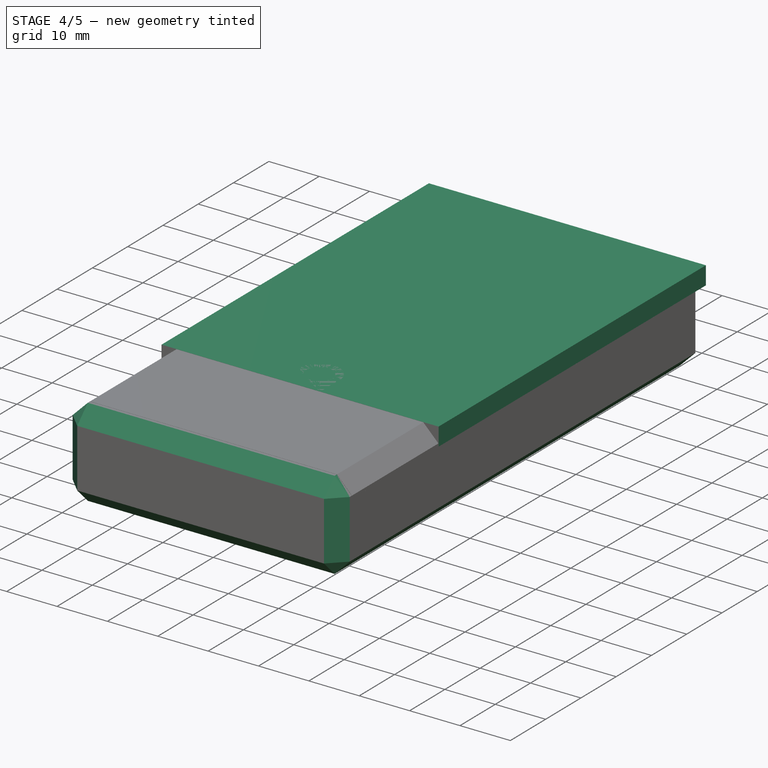
[diagram: stage 4 of 5 — iso view after this stage's code; geometry added in this stage tinted green]
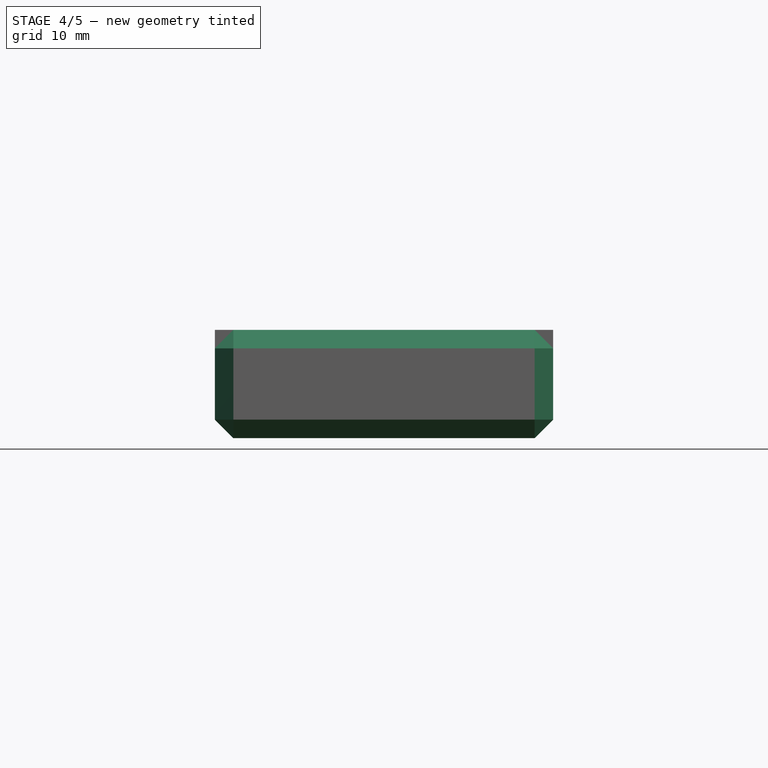
[diagram: stage 4 of 5 — front view after this stage's code; geometry added in this stage tinted green]
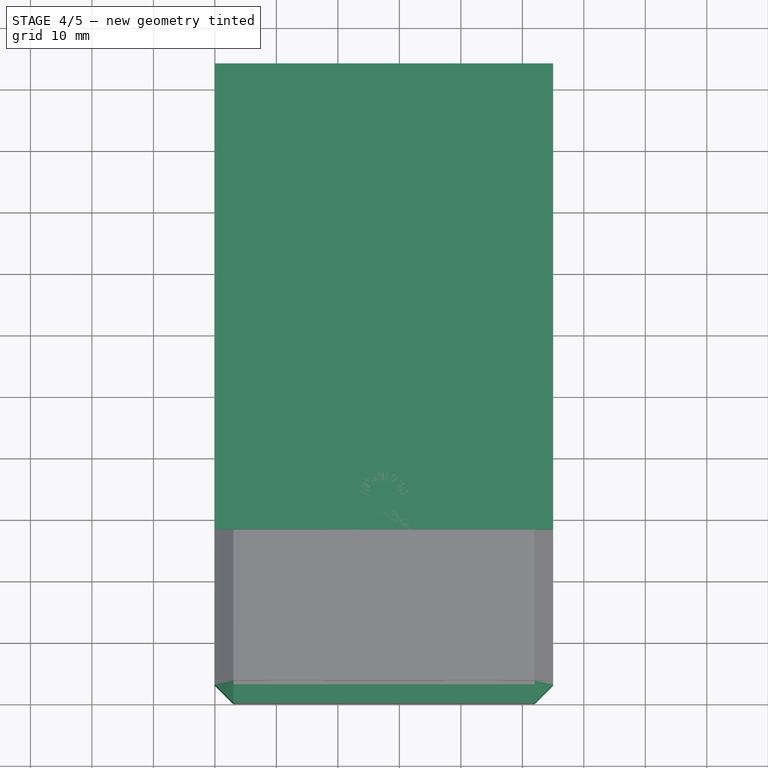
[diagram: stage 4 of 5 — top view after this stage's code; geometry added in this stage tinted green]
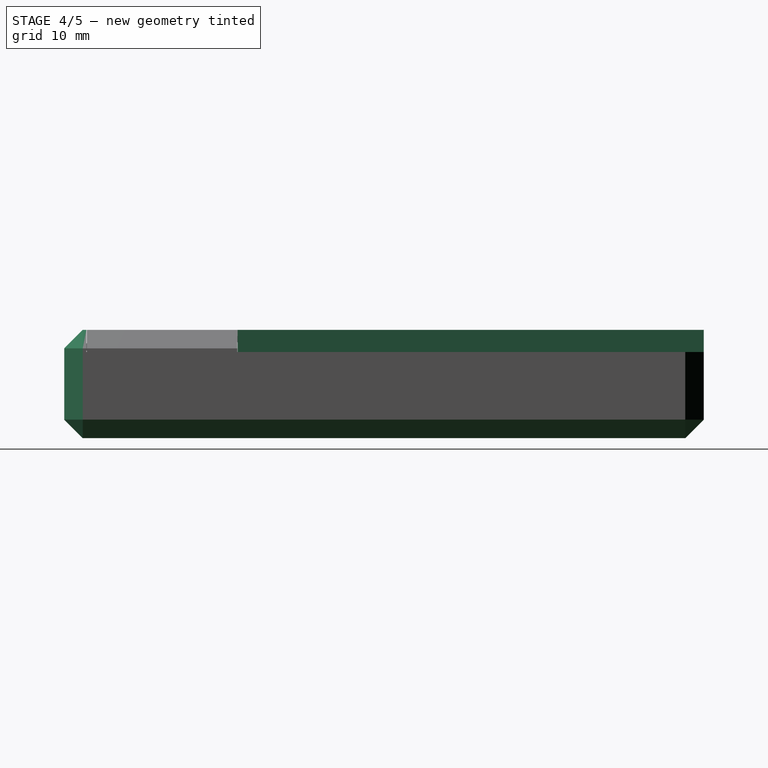
[diagram: stage 4 of 5 — right view after this stage's code; geometry added in this stage tinted green]
FEATURE [Sketcher::SketchObject] Sketch017
  Placement = pos=(55,28.2,17.6) rot=(0,1,0;3.14159rad)
  sketch-geometry (4):
    g0: LineSegment StartX=0 StartY=0 StartZ=0 EndX=55 EndY=0 EndZ=0
    g1: LineSegment StartX=55 StartY=0 StartZ=0 EndX=55 EndY=75.8 EndZ=0
    g2: LineSegment StartX=55 StartY=75.8 StartZ=0 EndX=0 EndY=75.8 EndZ=0
    g3: LineSegment StartX=0 StartY=75.8 StartZ=0 EndX=0 EndY=0 EndZ=0
  constraints (11):
    c: Coincident(g0,g1)
    c: Coincident(g1,g2)
    c: Coincident(g2,g3)
    c: Coincident(g3,g0)
    c: Horizontal(g0)
    c: Horizontal(g2)
    c: Vertical(g1)
    c: Vertical(g3)
    c: Coincident(g0,g-1)
    c: Distance(g0) = 55
    c: Distance(g3) = 75.8
FEATURE [PartDesign::Pad] Pad012
  Length = 3.6
  Length2 = 100
  Placement = pos=(55,28.2,17.6) rot=(0,1,0;3.14159rad)
  Sketch = -> Sketch017
  Type = 0
FEATURE [Sketcher::SketchObject] Sketch018
  ExternalGeometry = -> [Pad012]
  Placement = pos=(55,28.2,14) rot=(0,1,0;3.14159rad)
  Support = -> Pad012 [Face6]
  sketch-geometry (4):
    g0: LineSegment StartX=1.62 StartY=0 StartZ=0 EndX=53.38 EndY=0 EndZ=0
    g1: LineSegment StartX=53.38 StartY=0 StartZ=0 EndX=53.38 EndY=74.18 EndZ=0
    g2: LineSegment StartX=53.38 StartY=74.18 StartZ=0 EndX=1.62 EndY=74.18 EndZ=0
    g3: LineSegment StartX=1.62 StartY=74.18 StartZ=0 EndX=1.62 EndY=0 EndZ=0
  constraints (12):
    c: Coincident(g0,g1)
    c: Coincident(g1,g2)
    c: Coincident(g2,g3)
    c: Coincident(g3,g0)
    c: Horizontal(g0)
    c: Horizontal(g2)
    c: Vertical(g1)
    c: Vertical(g3)
    c: PointOnObject(g0,g-6)
    c: DistanceX(g-5,g2) = 1.62
    c: DistanceX(g1,g-4) = 1.62
    c: DistanceY(g2,g-5) = 1.62
FEATURE [PartDesign::Pad] Pad013
  Length = 5
  Length2 = 100
  Placement = pos=(55,28.2,17.6) rot=(0,1,0;3.14159rad)
  Sketch = -> Sketch018
  Type = 0
FEATURE [Sketcher::SketchObject] Sketch002
  ExternalGeometry = -> [Pad013]
  Placement = pos=(55,28.2,9) rot=(0,1,0;3.14159rad)
  Support = -> Pad013 [Face11]
  sketch-geometry (8):
    g0: LineSegment StartX=18.22 StartY=1.6 StartZ=0 EndX=3.22 EndY=1.6 EndZ=0
    g1: LineSegment StartX=3.22 StartY=1.6 StartZ=0 EndX=3.22 EndY=72.58 EndZ=0
    g2: LineSegment StartX=3.22 StartY=72.58 StartZ=0 EndX=51.78 EndY=72.58 EndZ=0
    g3: LineSegment StartX=51.78 StartY=72.58 StartZ=0 EndX=51.78 EndY=1.6 EndZ=0
    g4: LineSegment StartX=51.78 StartY=1.6 StartZ=0 EndX=36.78 EndY=1.6 EndZ=0
    g5: LineSegment StartX=36.78 StartY=1.6 StartZ=0 EndX=36.78 EndY=14.1 EndZ=0
    g6: LineSegment StartX=36.78 StartY=14.1 StartZ=0 EndX=18.22 EndY=14.1 EndZ=0
    g7: LineSegment StartX=18.22 StartY=14.1 StartZ=0 EndX=18.22 EndY=1.6 EndZ=0
  constraints (24):
    c: Horizontal(g0)
    c: Coincident(g0,g1)
    c: Vertical(g1)
    c: Coincident(g1,g2)
    c: Horizontal(g2)
    c: Coincident(g2,g3)
    c: Vertical(g3)
    c: Coincident(g3,g4)
    c: Horizontal(g4)
    c: Coincident(g4,g5)
    c: Vertical(g5)
    c: Coincident(g5,g6)
    c: Horizontal(g6)
    c: Coincident(g6,g7)
    c: Coincident(g7,g0)
    c: Vertical(g7)
    c: DistanceY(g-1,g0) = 1.6
    c: DistanceY(g-1,g3) = 1.6
    c: DistanceY(g1,g-5) = 1.6
    c: DistanceX(g-5,g1) = 1.6
    c: DistanceX(g2,g-5) = 1.6
    c: Distance(g0) = 15
    c: Distance(g4) = 15
    c: Distance(g7) = 12.5
FEATURE [PartDesign::Pocket] Pocket004
  Length = 7
  Placement = pos=(55,28.2,17.6) rot=(0,1,0;3.14159rad)
  Sketch = -> Sketch002
  Type = 0
FEATURE [Sketcher::SketchObject] Sketch019
  ExternalGeometry = -> [Pocket004]
  Placement = pos=(55,28.2,16) rot=(0,1,0;3.14159rad)
  Support = -> Pocket004 [Face20]
  sketch-geometry (4):
    g0: Circle CenterX=10.72 CenterY=52.58 CenterZ=0 NormalX=0 NormalY=0 NormalZ=1 Radius=2
    g1: Circle CenterX=44.28 CenterY=52.58 CenterZ=0 NormalX=0 NormalY=0 NormalZ=1 Radius=2
    g2: Circle CenterX=18.22 CenterY=18.6 CenterZ=0 NormalX=0 NormalY=0 NormalZ=1 Radius=2
    g3: Circle CenterX=36.78 CenterY=18.6 CenterZ=0 NormalX=0 NormalY=0 NormalZ=1 Radius=2
  constraints (12):
    c: Radius(g2) = 2
    c: Equal(g2,g0)
    c: Equal(g2,g1)
    c: Equal(g2,g3)
    c: DistanceY(g-6,g2) = 17
    c: DistanceY(g-7,g3) = 17
    c: DistanceX(g-6,g2) = 15
    c: DistanceX(g3,g-7) = 15
    c: DistanceX(g-6,g0) = 7.5
    c: DistanceX(g1,g-7) = 7.5
    c: DistanceY(g0,g-6) = 20
    c: DistanceY(g1,g-7) = 20
FEATURE [PartDesign::Pad] Pad014
  Length = 8
  Length2 = 100
  Placement = pos=(55,28.2,17.6) rot=(0,1,0;3.14159rad)
  Sketch = -> Sketch019
  Type = 0
FEATURE [Sketcher::SketchObject] Sketch020
  ExternalGeometry = -> [Pad014]
  Placement = pos=(1.62,28.2,17.6) rot=(0.57735,0.57735,-0.57735;4.18879rad)
  Support = -> Pad014 [Face8]
  sketch-geometry (8):
    g0: LineSegment StartX=14 StartY=6.6 StartZ=0 EndX=24 EndY=6.6 EndZ=0
    g1: LineSegment StartX=24 StartY=6.6 StartZ=0 EndX=24 EndY=4.1 EndZ=0
    g2: LineSegment StartX=24 StartY=4.1 StartZ=0 EndX=14 EndY=4.1 EndZ=0
    g3: LineSegment StartX=14 StartY=4.1 StartZ=0 EndX=14 EndY=6.6 EndZ=0
    g4: LineSegment StartX=52.5 StartY=6.6 StartZ=0 EndX=62.5 EndY=6.6 EndZ=0
    g5: LineSegment StartX=62.5 StartY=6.6 StartZ=0 EndX=62.5 EndY=4.1 EndZ=0
    g6: LineSegment StartX=62.5 StartY=4.1 StartZ=0 EndX=52.5 EndY=4.1 EndZ=0
    g7: LineSegment StartX=52.5 StartY=4.1 StartZ=0 EndX=52.5 EndY=6.6 EndZ=0
  constraints (24):
    c: Coincident(g0,g1)
    c: Coincident(g1,g2)
    c: Coincident(g2,g3)
    c: Coincident(g3,g0)
    c: Horizontal(g0)
    c: Horizontal(g2)
    c: Vertical(g1)
    c: Vertical(g3)
    c: Coincident(g4,g5)
    c: Coincident(g5,g6)
    c: Coincident(g6,g7)
    c: Coincident(g7,g4)
    c: Horizontal(g4)
    c: Horizontal(g6)
    c: Vertical(g5)
    c: Vertical(g7)
    c: Equal(g1,g7)
    c: Equal(g0,g4)
    c: DistanceX(g-1,g0) = 14
    c: Distance(g0) = 10
    c: DistanceX(g0,g4) = 28.5
    c: DistanceY(g0,g-4) = 2
    c: Distance(g3) = 2.5
    c: DistanceY(g4,g-5) = 2
FEATURE [PartDesign::Pocket] Pocket005
  Length = 1
  Placement = pos=(55,28.2,17.6) rot=(0,1,0;3.14159rad)
  Sketch = -> Sketch020
  Type = 0
FEATURE [Sketcher::SketchObject] Sketch021
  ExternalGeometry = -> [Pocket005]
  Placement = pos=(53.38,28.2,17.6) rot=(-0.57735,0.57735,-0.57735;2.0944rad)
  Support = -> Pocket005 [Face10]
  sketch-geometry (8):
    g0: LineSegment StartX=-62.5 StartY=6.6 StartZ=0 EndX=-52.5 EndY=6.6 EndZ=0
    g1: LineSegment StartX=-52.5 StartY=6.6 StartZ=0 EndX=-52.5 EndY=4.1 EndZ=0
    g2: LineSegment StartX=-52.5 StartY=4.1 StartZ=0 EndX=-62.5 EndY=4.1 EndZ=0
    g3: LineSegment StartX=-62.5 StartY=4.1 StartZ=0 EndX=-62.5 EndY=6.6 EndZ=0
    g4: LineSegment StartX=-24 StartY=6.6 StartZ=0 EndX=-14 EndY=6.6 EndZ=0
    g5: LineSegment StartX=-14 StartY=6.6 StartZ=0 EndX=-14 EndY=4.1 EndZ=0
    g6: LineSegment StartX=-14 StartY=4.1 StartZ=0 EndX=-24 EndY=4.1 EndZ=0
    g7: LineSegment StartX=-24 StartY=4.1 StartZ=0 EndX=-24 EndY=6.6 EndZ=0
  constraints (24):
    c: Coincident(g0,g1)
    c: Coincident(g1,g2)
    c: Coincident(g2,g3)
    c: Coincident(g3,g0)
    c: Horizontal(g0)
    c: Horizontal(g2)
    c: Vertical(g1)
    c: Vertical(g3)
    c: Coincident(g4,g5)
    c: Coincident(g5,g6)
    c: Coincident(g6,g7)
    c: Coincident(g7,g4)
    c: Horizontal(g4)
    c: Horizontal(g6)
    c: Vertical(g5)
    c: Vertical(g7)
    c: Equal(g7,g1)
    c: Equal(g0,g4)
    c: Distance(g5) = 2.5
    c: DistanceY(g4,g-5) = 2
    c: DistanceY(g0,g-4) = 2
    c: DistanceX(g4,g-5) = 14
    c: Distance(g4) = 10
    c: DistanceX(g0,g4) = 28.5
FEATURE [PartDesign::Pocket] Pocket006
  Length = 1
  Placement = pos=(55,28.2,17.6) rot=(0,1,0;3.14159rad)
  Sketch = -> Sketch021
  Type = 0
FEATURE [PartDesign::Chamfer] Chamfer006
  Base = -> Chamfer005 [Edge140,Edge144,Edge116,Edge120]
  Size = 1
FEATURE [PartDesign::Chamfer] Chamfer007
  Base = -> Chamfer006 [Edge164,Edge173,Edge163,Edge153,Edge154]
  Size = 1.5
FEATURE [PartDesign::Chamfer] Chamfer008
  Base = -> Chamfer007 [Edge194,Edge193,Edge59,Edge192,Edge60,Edge188,Edge57,Edge53,Edge58,Edge54,Edge55,Edge191,Edge190]
  Size = 3
FEATURE [Sketcher::SketchObject] Sketch016
  ExternalGeometry = -> [Chamfer008]
  Placement = pos=(0,3.6,0) rot=(0,0.707107,0.707107;3.14159rad)
  Support = -> Chamfer008 [Face4]
  sketch-geometry (8):
    g0: LineSegment StartX=-47 StartY=15.6 StartZ=0 EndX=-37 EndY=15.6 EndZ=0
    g1: LineSegment StartX=-37 StartY=15.6 StartZ=0 EndX=-37 EndY=14 EndZ=0
    g2: LineSegment StartX=-37 StartY=14 StartZ=0 EndX=-47 EndY=14 EndZ=0
    g3: LineSegment StartX=-47 StartY=14 StartZ=0 EndX=-47 EndY=15.6 EndZ=0
    g4: LineSegment StartX=-18 StartY=15.6 StartZ=0 EndX=-8 EndY=15.6 EndZ=0
    g5: LineSegment StartX=-8 StartY=15.6 StartZ=0 EndX=-8 EndY=14 EndZ=0
    g6: LineSegment StartX=-8 StartY=14 StartZ=0 EndX=-18 EndY=14 EndZ=0
    g7: LineSegment StartX=-18 StartY=14 StartZ=0 EndX=-18 EndY=15.6 EndZ=0
  constraints (24):
    c: Coincident(g0,g1)
    c: Coincident(g1,g2)
    c: Coincident(g2,g3)
    c: Coincident(g3,g0)
    c: Horizontal(g0)
    c: Horizontal(g2)
    c: Vertical(g1)
    c: Vertical(g3)
    c: Coincident(g4,g5)
    c: Coincident(g5,g6)
    c: Coincident(g6,g7)
    c: Coincident(g7,g4)
    c: Horizontal(g4)
    c: Horizontal(g6)
    c: Vertical(g5)
    c: Vertical(g7)
    c: Equal(g1,g7)
    c: Equal(g4,g0)
    c: DistanceX(g-5,g0) = 5
    c: DistanceX(g0,g0) = 10
    c: DistanceX(g4,g-7) = 5
    c: DistanceY(g0,g-5) = 2
    c: Distance(g3) = 1.6
    c: DistanceY(g4,g-7) = 2
FEATURE [PartDesign::Pocket] Pocket003
  Length = 2
  Sketch = -> Sketch016
  Type = 0
FEATURE [PartDesign::Chamfer] Chamfer009
  Base = -> Pocket003 [Edge157,Edge150]
  Size = 1
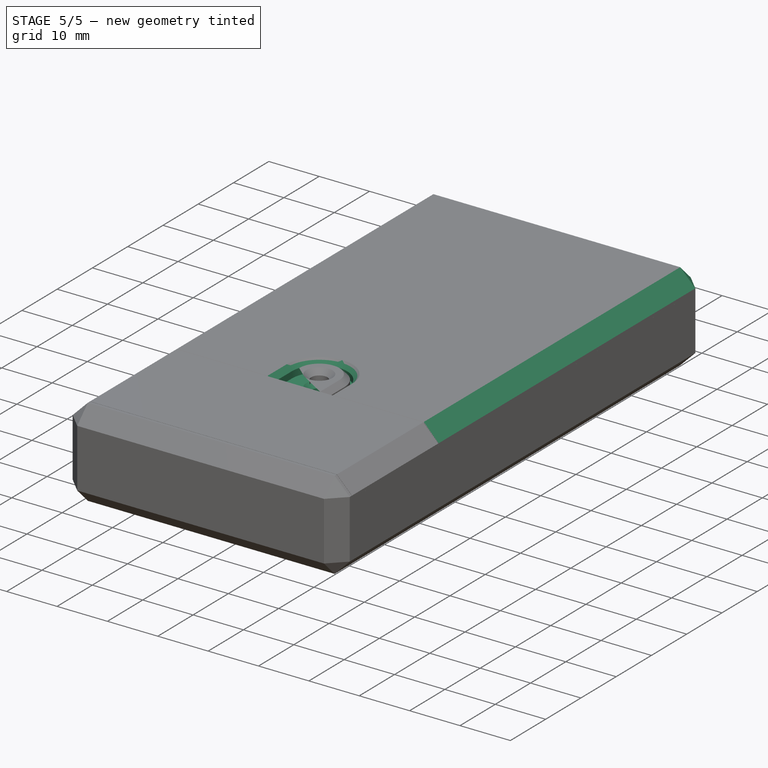
[diagram: stage 5 of 5 — iso view after this stage's code; geometry added in this stage tinted green]
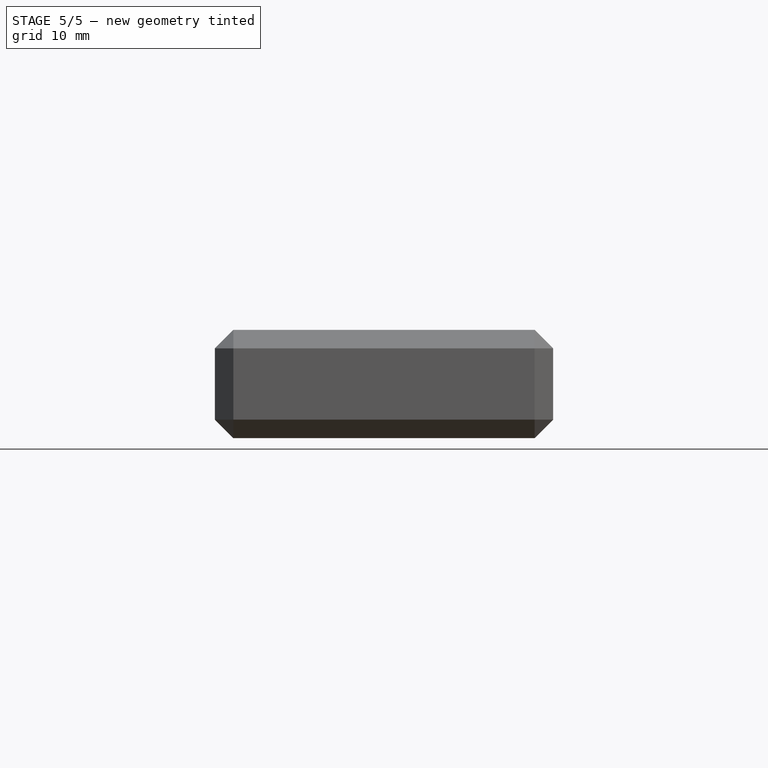
[diagram: stage 5 of 5 — front view after this stage's code; geometry added in this stage tinted green]
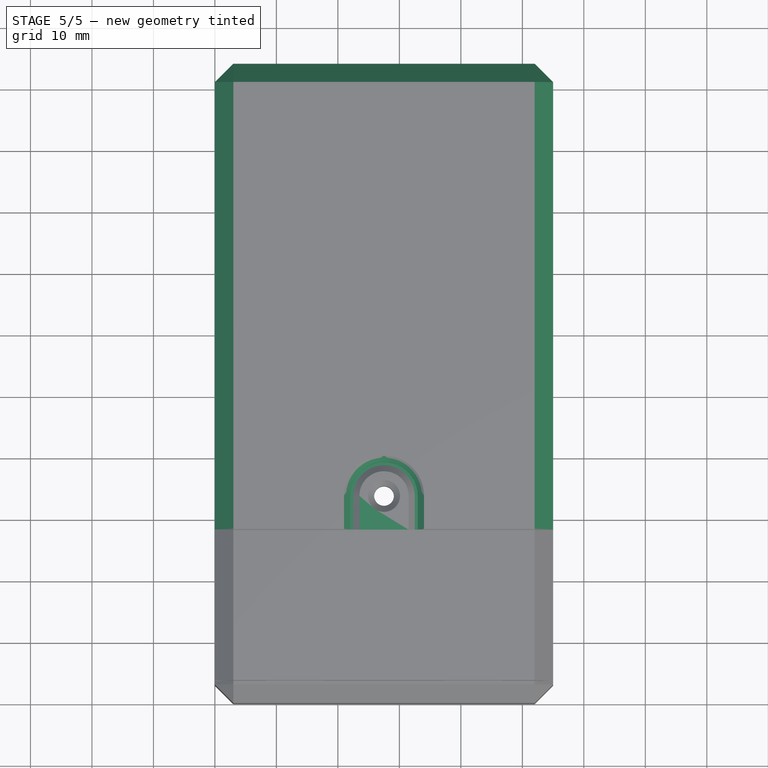
[diagram: stage 5 of 5 — top view after this stage's code; geometry added in this stage tinted green]
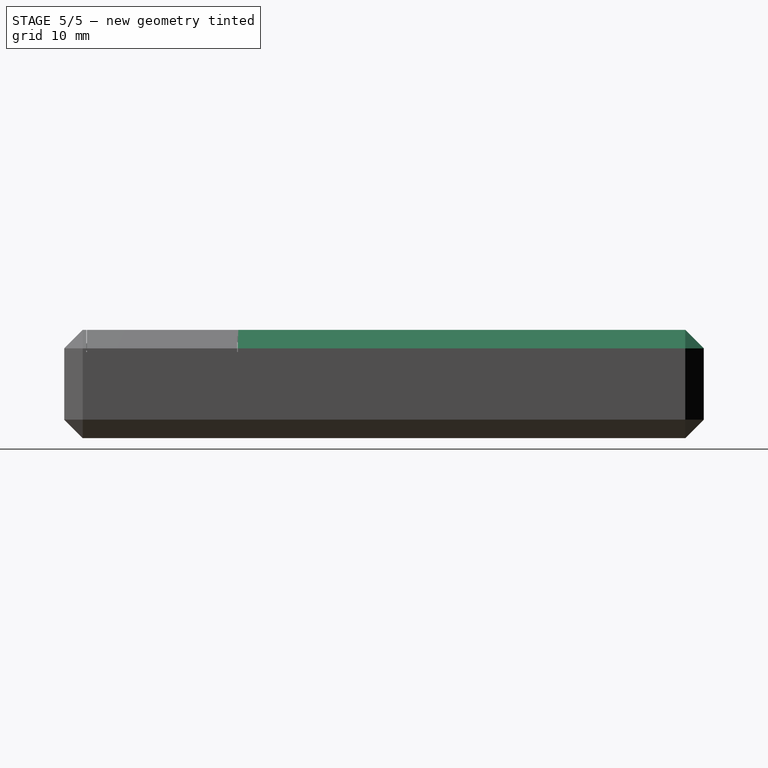
[diagram: stage 5 of 5 — right view after this stage's code; geometry added in this stage tinted green]
FEATURE [Sketcher::SketchObject] Sketch022
  ExternalGeometry = -> [Pocket006]
  Placement = pos=(55,28.2,17.6) rot=(0,0,1;3.14159rad)
  Support = -> Pocket006 [Face4]
  sketch-geometry (6):
    g0: LineSegment StartX=22 StartY=0 StartZ=0 EndX=33 EndY=0 EndZ=0
    g1: LineSegment StartX=33 StartY=0 StartZ=0 EndX=33 EndY=-5.5 EndZ=0
    g2: LineSegment StartX=27.5 StartY=-11 StartZ=0 EndX=27.5 EndY=-11 EndZ=0
    g3: LineSegment StartX=22 StartY=-5.5 StartZ=0 EndX=22 EndY=0 EndZ=0
    g4: ArcOfCircle CenterX=27.5 CenterY=-5.5 CenterZ=0 NormalX=0 NormalY=0 NormalZ=1 Radius=5.5 StartAngle=3.14159 EndAngle=4.71239
    g5: ArcOfCircle CenterX=27.5 CenterY=-5.5 CenterZ=0 NormalX=0 NormalY=0 NormalZ=1 Radius=5.5 StartAngle=4.71239 EndAngle=6.28319
  constraints (16):
    c: Coincident(g0,g1)
    c: Coincident(g3,g0)
    c: Horizontal(g0)
    c: Horizontal(g2)
    c: Vertical(g1)
    c: Vertical(g3)
    c: PointOnObject(g0,g-3)
    c: Tangent(g3,g4) = 1.5708
    c: Tangent(g2,g4) = 1.5708
    c: Tangent(g2,g5) = 1.5708
    c: Tangent(g1,g5) = 1.5708
    c: DistanceX(g-1,g0) = 22
    c: DistanceX(g0,g-3) = 22
    c: DistanceY(g2,g-1) = 11
    c: Radius(g4) = 5.5
    c: Equal(g4,g5)
FEATURE [PartDesign::Pocket] Pocket007
  Length = 2.3
  Placement = pos=(55,28.2,17.6) rot=(0,1,0;3.14159rad)
  Sketch = -> Sketch022
  Type = 0
FEATURE [Sketcher::SketchObject] Sketch023
  ExternalGeometry = -> [Pocket007]
  Placement = pos=(55,28.2,15.3) rot=(0,0,1;3.14159rad)
  Support = -> Pocket007 [Face8]
  sketch-geometry (1):
    g0: Circle CenterX=27.5 CenterY=-5.5 CenterZ=0 NormalX=0 NormalY=0 NormalZ=1 Radius=1.6
  constraints (2):
    c: Coincident(g0,g-3)
    c: Radius(g0) = 1.6
FEATURE [PartDesign::Pocket] Pocket008
  Length = 5
  Placement = pos=(55,28.2,17.6) rot=(0,1,0;3.14159rad)
  Sketch = -> Sketch023
  Type = 1
FEATURE [PartDesign::Chamfer] Chamfer010
  Base = -> Pocket008 [Edge105,Edge103]
  Placement = pos=(55,28.2,17.6) rot=(0,1,0;3.14159rad)
  Size = 5
FEATURE [PartDesign::Chamfer] Chamfer011
  Base = -> Chamfer010 [Edge34,Edge31]
  Placement = pos=(55,28.2,17.6) rot=(0,1,0;3.14159rad)
  Size = 2
FEATURE [PartDesign::Chamfer] Chamfer012
  Base = -> Chamfer011 [Edge34,Edge30,Edge38,Edge26,Edge41,Edge22,Edge40,Edge20,Edge36,Edge23,Edge32,Edge28,Edge68,Edge69,Edge70,Edge71]
  Placement = pos=(55,28.2,17.6) rot=(0,1,0;3.14159rad)
  Size = 1
FEATURE [PartDesign::Chamfer] Chamfer013
  Base = -> Chamfer012 [Edge76,Edge65]
  Placement = pos=(55,28.2,17.6) rot=(0,1,0;3.14159rad)
  Size = 3
FEATURE [PartDesign::Chamfer] Chamfer014
  Base = -> Chamfer013 [Edge1,Edge2,Edge3,Edge4,Edge5,Edge6,Edge7,Edge8,Edge9,Edge10,Edge11,Edge12,Edge13,Edge14,Edge15,Edge16,Edge17,Edge18,Edge19]
  Placement = pos=(55,28.2,17.6) rot=(0,1,0;3.14159rad)
  Size = 0.5
FEATURE [PartDesign::Chamfer] Chamfer015
  Base = -> Chamfer014 [Edge111]
  Placement = pos=(55,28.2,17.6) rot=(0,1,0;3.14159rad)
  Size = 1
FEATURE [PartDesign::Chamfer] Chamfer016
  Base = -> Chamfer015 [Edge100,Edge89,Edge87,Edge88,Edge86]
  Placement = pos=(55,28.2,17.6) rot=(0,1,0;3.14159rad)
  Size = 3
FEATURE [PartDesign::Chamfer] Chamfer017
  Base = -> Chamfer016 [Edge1,Edge9]
  Placement = pos=(55,28.2,17.6) rot=(0,1,0;3.14159rad)
  Size = 0.1
FEATURE [PartDesign::Chamfer] Chamfer018
  Base = -> Chamfer017 [Edge53]
  Placement = pos=(55,28.2,17.6) rot=(0,1,0;3.14159rad)
  Size = 1
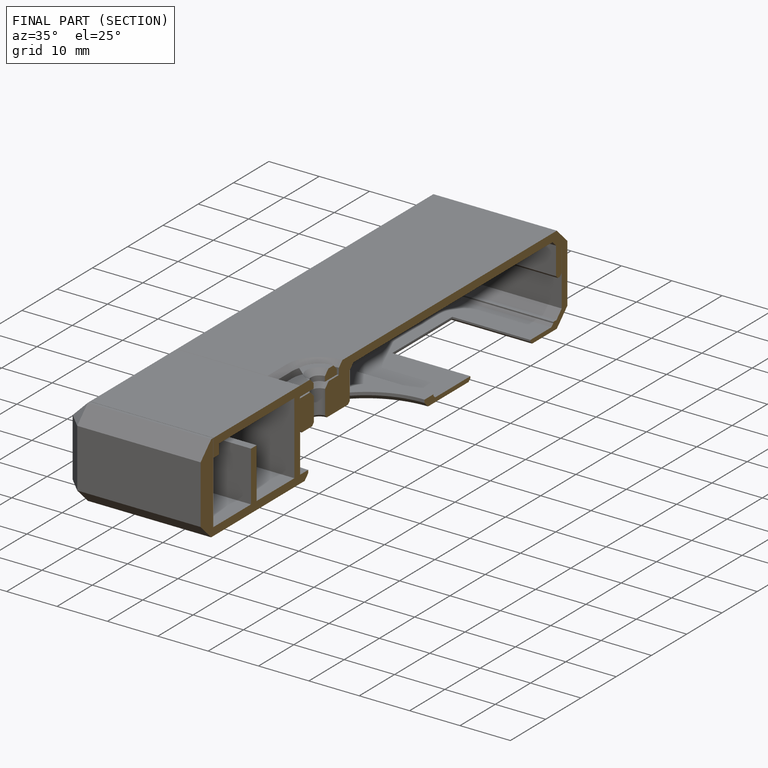
[diagram: finished part — half-section view (interior)]
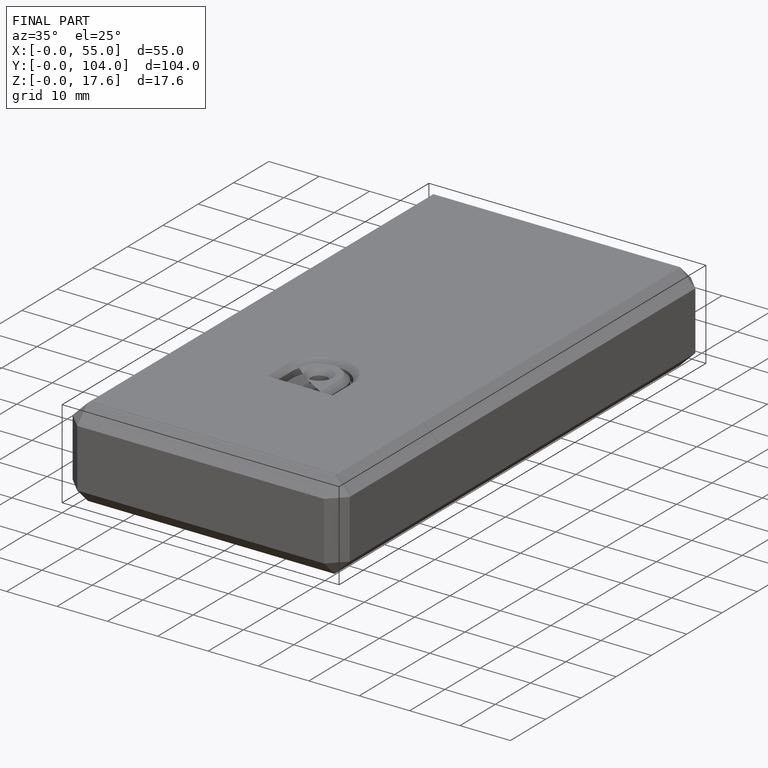
[diagram: finished part — iso view with bounding-box wireframe]
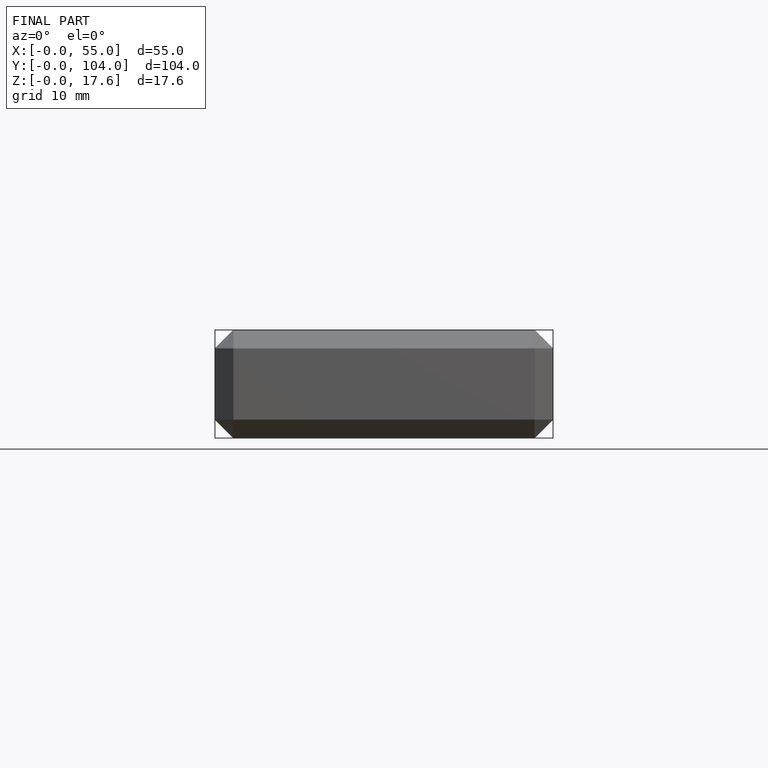
[diagram: finished part — front view with bounding-box wireframe]
